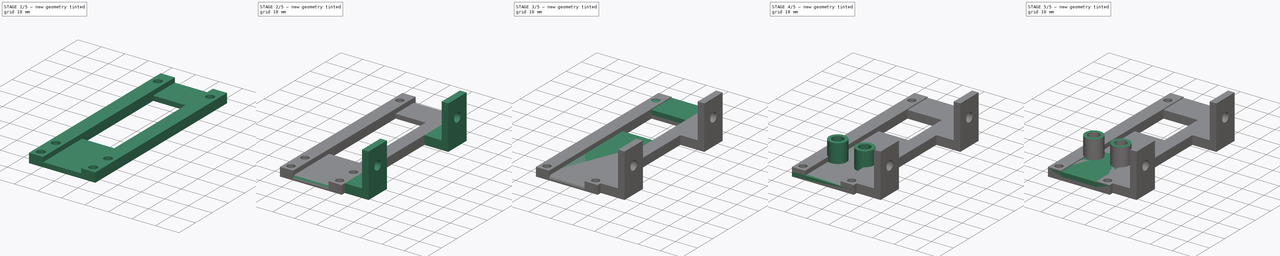
[diagram: build sequence overview — one tinted view per stage of 5, left to right]
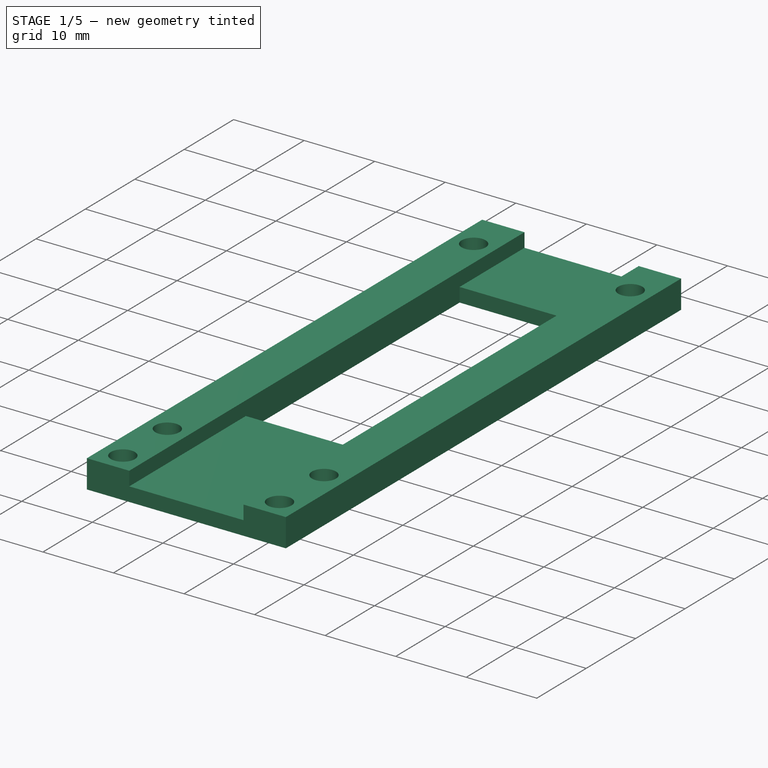
[diagram: stage 1 of 5 — iso view after this stage's code; geometry added in this stage tinted green]
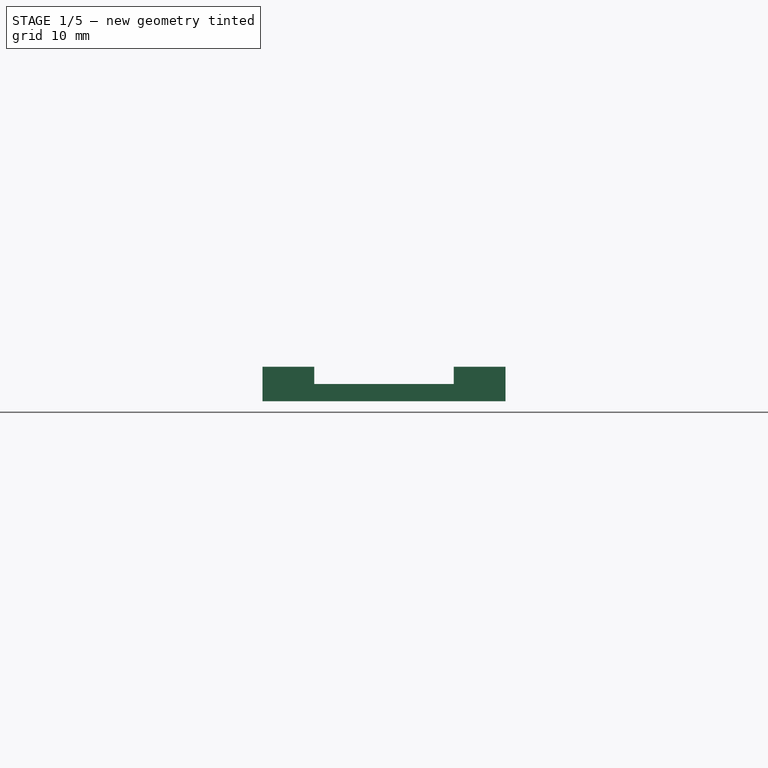
[diagram: stage 1 of 5 — front view after this stage's code; geometry added in this stage tinted green]
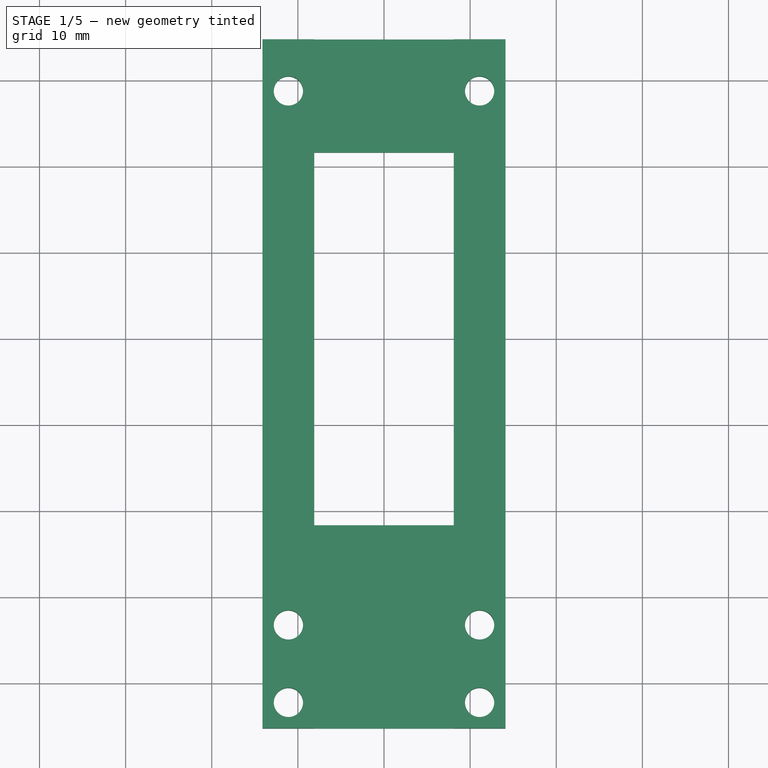
[diagram: stage 1 of 5 — top view after this stage's code; geometry added in this stage tinted green]
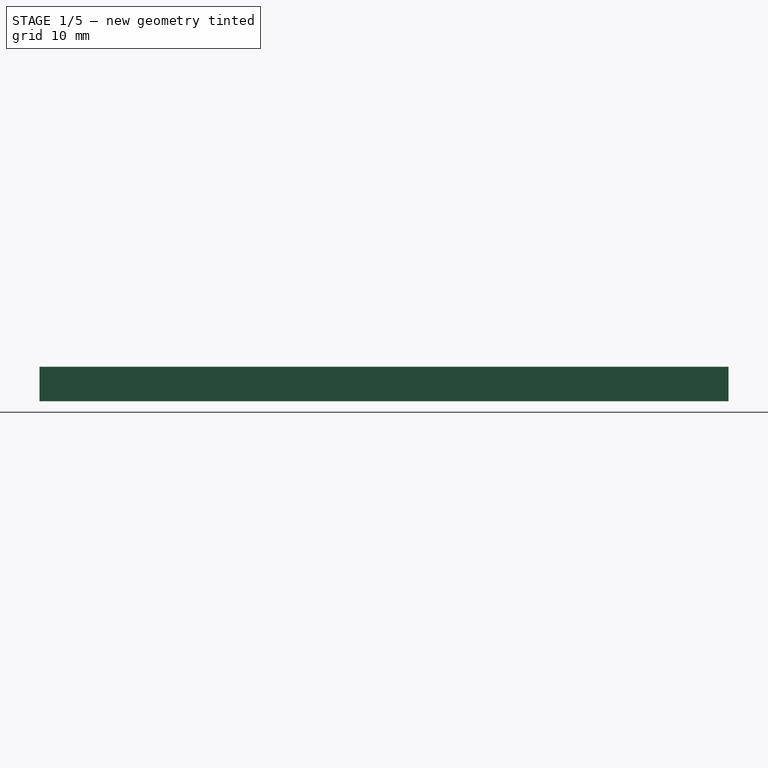
[diagram: stage 1 of 5 — right view after this stage's code; geometry added in this stage tinted green]
FCSTD DOCUMENT  (FreeCAD 0.21R33771 (Git))
Label: 16mm Film Holder
License: All rights reserved
LicenseURL: http://en.wikipedia.org/wiki/All_rights_reserved
objects: Sketcher::SketchObject×27, PartDesign::Pad×11, PartDesign::Pocket×11, PartDesign::Body×5, PartDesign::Fillet×2, Part::Feature×1
note: 81 computed .brp shape members not serialized (recipe doc carries the construction recipe); baked Part::Feature solids carry a one-line shape summary decoded from their .brp

FEATURE [Sketcher::SketchObject] Sketch  label="FilmStripOutline"
  FullyConstrained = false
  MapMode = 5
  Support = -> [XY_Plane]
  sketch-geometry (97):
    g0: LineSegment StartX=-8 StartY=30.2375 StartZ=0 EndX=8 EndY=30.2375 EndZ=0
    g1: LineSegment StartX=8 StartY=30.2375 StartZ=0 EndX=8 EndY=-30.2375 EndZ=0
    g2: LineSegment StartX=8 StartY=-30.2375 StartZ=0 EndX=-8 EndY=-30.2375 EndZ=0
    g3: LineSegment StartX=-8 StartY=-30.2375 StartZ=0 EndX=-8 EndY=30.2375 EndZ=0
    g4: LineSegment StartX=-5.13 StartY=3.745 StartZ=0 EndX=5.13 EndY=3.745 EndZ=0
    g5: LineSegment StartX=5.13 StartY=3.745 StartZ=0 EndX=5.13 EndY=-3.745 EndZ=0
    g6: LineSegment StartX=5.13 StartY=-3.745 StartZ=0 EndX=-5.13 EndY=-3.745 EndZ=0
    g7: LineSegment StartX=-5.13 StartY=-3.745 StartZ=0 EndX=-5.13 EndY=3.745 EndZ=0
    g8: LineSegment StartX=-5.13 StartY=3.8575 StartZ=0 EndX=5.13 EndY=3.8575 EndZ=0
    g9: LineSegment StartX=5.13 StartY=3.8575 StartZ=0 EndX=5.13 EndY=11.3475 EndZ=0
    g10: LineSegment StartX=5.13 StartY=11.3475 StartZ=0 EndX=-5.13 EndY=11.3475 EndZ=0
    g11: LineSegment StartX=-5.13 StartY=11.3475 StartZ=0 EndX=-5.13 EndY=3.8575 EndZ=0
    g12: LineSegment StartX=-5.13 StartY=12.0925 StartZ=0 EndX=5.13 EndY=12.0925 EndZ=0
    g13: LineSegment StartX=5.13 StartY=12.0925 StartZ=0 EndX=5.13 EndY=19.5825 EndZ=0
    g14: LineSegment StartX=5.13 StartY=19.5825 StartZ=0 EndX=-5.13 EndY=19.5825 EndZ=0
    g15: LineSegment StartX=-5.13 StartY=19.5825 StartZ=0 EndX=-5.13 EndY=12.0925 EndZ=0
    g16: LineSegment StartX=-5.13 StartY=-3.8575 StartZ=0 EndX=5.13 EndY=-3.8575 EndZ=0
    g17: LineSegment StartX=5.13 StartY=-3.8575 StartZ=0 EndX=5.13 EndY=-11.3475 EndZ=0
    g18: LineSegment StartX=5.13 StartY=-11.3475 StartZ=0 EndX=-5.13 EndY=-11.3475 EndZ=0
    g19: LineSegment StartX=-5.13 StartY=-11.3475 StartZ=0 EndX=-5.13 EndY=-3.8575 EndZ=0
    g20: LineSegment StartX=-5.13 StartY=-11.4575 StartZ=0 EndX=5.13 EndY=-11.4575 EndZ=0
    g21: LineSegment StartX=5.13 StartY=-11.4575 StartZ=0 EndX=5.13 EndY=-18.9475 EndZ=0
    g22: LineSegment StartX=5.13 StartY=-18.9475 StartZ=0 EndX=-5.13 EndY=-18.9475 EndZ=0
    g23: LineSegment StartX=-5.13 StartY=-18.9475 StartZ=0 EndX=-5.13 EndY=-11.4575 EndZ=0
    g24: LineSegment StartX=-7.1687 StartY=4.4375 StartZ=0 EndX=-5.1875 EndY=4.4375 EndZ=0
    g25: LineSegment StartX=-5.1875 StartY=4.4375 StartZ=0 EndX=-5.1875 EndY=3.1675 EndZ=0
    g26: LineSegment StartX=-5.1875 StartY=3.1675 StartZ=0 EndX=-7.1687 EndY=3.1675 EndZ=0
    g27: LineSegment StartX=-7.1687 StartY=3.1675 StartZ=0 EndX=-7.1687 EndY=4.4375 EndZ=0
    g28: LineSegment StartX=5.1875 StartY=4.4375 StartZ=0 EndX=7.1687 EndY=4.4375 EndZ=0
    g29: LineSegment StartX=7.1687 StartY=4.4375 StartZ=0 EndX=7.1687 EndY=3.1675 EndZ=0
    g30: LineSegment StartX=7.1687 StartY=3.1675 StartZ=0 EndX=5.1875 EndY=3.1675 EndZ=0
    g31: LineSegment StartX=5.1875 StartY=3.1675 StartZ=0 EndX=5.1875 EndY=4.4375 EndZ=0
    g32: GeomPoint X=6.1781 Y=3.8025 Z=0
    g33: GeomPoint X=-6.1781 Y=3.8025 Z=0
    g34: LineSegment StartX=-7.1687 StartY=-3.1675 StartZ=0 EndX=-5.1875 EndY=-3.1675 EndZ=0
    g35: LineSegment StartX=-5.1875 StartY=-3.1675 StartZ=0 EndX=-5.1875 EndY=-4.4375 EndZ=0
    g36: LineSegment StartX=-5.1875 StartY=-4.4375 StartZ=0 EndX=-7.1687 EndY=-4.4375 EndZ=0
    g37: LineSegment StartX=-7.1687 StartY=-4.4375 StartZ=0 EndX=-7.1687 EndY=-3.1675 EndZ=0
    g38: LineSegment StartX=5.1875 StartY=-3.1675 StartZ=0 EndX=7.1687 EndY=-3.1675 EndZ=0
    g39: LineSegment StartX=7.1687 StartY=-3.1675 StartZ=0 EndX=7.1687 EndY=-4.4375 EndZ=0
    g40: LineSegment StartX=7.1687 StartY=-4.4375 StartZ=0 EndX=5.1875 EndY=-4.4375 EndZ=0
    g41: LineSegment StartX=5.1875 StartY=-4.4375 StartZ=0 EndX=5.1875 EndY=-3.1675 EndZ=0
    g42: GeomPoint X=-6.1781 Y=-3.8025 Z=0
    g43: GeomPoint X=6.1781 Y=-3.8025 Z=0
    g44: LineSegment StartX=-7.1687 StartY=-10.7675 StartZ=0 EndX=-5.1875 EndY=-10.7675 EndZ=0
    g45: LineSegment StartX=-5.1875 StartY=-10.7675 StartZ=0 EndX=-5.1875 EndY=-12.0375 EndZ=0
    g46: LineSegment StartX=-5.1875 StartY=-12.0375 StartZ=0 EndX=-7.1687 EndY=-12.0375 EndZ=0
    g47: LineSegment StartX=-7.1687 StartY=-12.0375 StartZ=0 EndX=-7.1687 EndY=-10.7675 EndZ=0
    g48: LineSegment StartX=5.1875 StartY=-10.7675 StartZ=0 EndX=7.1687 EndY=-10.7675 EndZ=0
    g49: LineSegment StartX=7.1687 StartY=-10.7675 StartZ=0 EndX=7.1687 EndY=-12.0375 EndZ=0
    g50: LineSegment StartX=7.1687 StartY=-12.0375 StartZ=0 EndX=5.1875 EndY=-12.0375 EndZ=0
    g51: LineSegment StartX=5.1875 StartY=-12.0375 StartZ=0 EndX=5.1875 EndY=-10.7675 EndZ=0
    g52: LineSegment StartX=-7.1687 StartY=-18.3675 StartZ=0 EndX=-5.1875 EndY=-18.3675 EndZ=0
    g53: LineSegment StartX=-5.1875 StartY=-18.3675 StartZ=0 EndX=-5.1875 EndY=-19.6375 EndZ=0
    g54: LineSegment StartX=-5.1875 StartY=-19.6375 StartZ=0 EndX=-7.1687 EndY=-19.6375 EndZ=0
    g55: LineSegment StartX=-7.1687 StartY=-19.6375 StartZ=0 EndX=-7.1687 EndY=-18.3675 EndZ=0
    g56: LineSegment StartX=5.1875 StartY=-18.3675 StartZ=0 EndX=7.1687 EndY=-18.3675 EndZ=0
    g57: LineSegment StartX=7.1687 StartY=-18.3675 StartZ=0 EndX=7.1687 EndY=-19.6375 EndZ=0
    g58: LineSegment StartX=7.1687 StartY=-19.6375 StartZ=0 EndX=5.1875 EndY=-19.6375 EndZ=0
    g59: LineSegment StartX=5.1875 StartY=-19.6375 StartZ=0 EndX=5.1875 EndY=-18.3675 EndZ=0
    g60: GeomPoint X=6e-16 Y=-7.6025 Z=0
    g61: GeomPoint X=-1.31121 Y=-21.1583 Z=0
    g62: GeomPoint X=8e-16 Y=-15.2025 Z=0
    g63: LineSegment StartX=-7.1687 StartY=12.0375 StartZ=0 EndX=-5.1875 EndY=12.0375 EndZ=0
    g64: LineSegment StartX=-5.1875 StartY=12.0375 StartZ=0 EndX=-5.1875 EndY=10.7675 EndZ=0
    g65: LineSegment StartX=-5.1875 StartY=10.7675 StartZ=0 EndX=-7.1687 EndY=10.7675 EndZ=0
    g66: LineSegment StartX=-7.1687 StartY=10.7675 StartZ=0 EndX=-7.1687 EndY=12.0375 EndZ=0
    g67: LineSegment StartX=-7.1687 StartY=19.6375 StartZ=0 EndX=-5.1875 EndY=19.6375 EndZ=0
    g68: LineSegment StartX=-5.1875 StartY=19.6375 StartZ=0 EndX=-5.1875 EndY=18.3675 EndZ=0
    g69: LineSegment StartX=-5.1875 StartY=18.3675 StartZ=0 EndX=-7.1687 EndY=18.3675 EndZ=0
    g70: LineSegment StartX=-7.1687 StartY=18.3675 StartZ=0 EndX=-7.1687 EndY=19.6375 EndZ=0
    g71: LineSegment StartX=5.1875 StartY=19.6375 StartZ=0 EndX=7.1687 EndY=19.6375 EndZ=0
    g72: LineSegment StartX=7.1687 StartY=19.6375 StartZ=0 EndX=7.1687 EndY=18.3675 EndZ=0
    g73: LineSegment StartX=7.1687 StartY=18.3675 StartZ=0 EndX=5.1875 EndY=18.3675 EndZ=0
    g74: LineSegment StartX=5.1875 StartY=18.3675 StartZ=0 EndX=5.1875 EndY=19.6375 EndZ=0
    g75: LineSegment StartX=5.1875 StartY=12.0375 StartZ=0 EndX=7.1687 EndY=12.0375 EndZ=0
    g76: LineSegment StartX=7.1687 StartY=12.0375 StartZ=0 EndX=7.1687 EndY=10.7675 EndZ=0
    g77: LineSegment StartX=7.1687 StartY=10.7675 StartZ=0 EndX=5.1875 EndY=10.7675 EndZ=0
    g78: LineSegment StartX=5.1875 StartY=10.7675 StartZ=0 EndX=5.1875 EndY=12.0375 EndZ=0
    g79: LineSegment StartX=5.1875 StartY=27.2375 StartZ=0 EndX=7.1687 EndY=27.2375 EndZ=0
    g80: LineSegment StartX=7.1687 StartY=27.2375 StartZ=0 EndX=7.1687 EndY=25.9675 EndZ=0
    g81: LineSegment StartX=7.1687 StartY=25.9675 StartZ=0 EndX=5.1875 EndY=25.9675 EndZ=0
    g82: LineSegment StartX=5.1875 StartY=25.9675 StartZ=0 EndX=5.1875 EndY=27.2375 EndZ=0
    g83: LineSegment StartX=-7.1687 StartY=27.2375 StartZ=0 EndX=-5.1875 EndY=27.2375 EndZ=0
    g84: LineSegment StartX=-5.1875 StartY=27.2375 StartZ=0 EndX=-5.1875 EndY=25.9675 EndZ=0
    g85: LineSegment StartX=-5.1875 StartY=25.9675 StartZ=0 EndX=-7.1687 EndY=25.9675 EndZ=0
    g86: LineSegment StartX=-7.1687 StartY=25.9675 StartZ=0 EndX=-7.1687 EndY=27.2375 EndZ=0
    g87: LineSegment StartX=5.1875 StartY=-25.9675 StartZ=0 EndX=7.1687 EndY=-25.9675 EndZ=0
    g88: LineSegment StartX=7.1687 StartY=-25.9675 StartZ=0 EndX=7.1687 EndY=-27.2375 EndZ=0
    g89: LineSegment StartX=7.1687 StartY=-27.2375 StartZ=0 EndX=5.1875 EndY=-27.2375 EndZ=0
    g90: LineSegment StartX=5.1875 StartY=-27.2375 StartZ=0 EndX=5.1875 EndY=-25.9675 EndZ=0
    g91: LineSegment StartX=-7.1687 StartY=-25.9675 StartZ=0 EndX=-5.1875 EndY=-25.9675 EndZ=0
    g92: LineSegment StartX=-5.1875 StartY=-25.9675 StartZ=0 EndX=-5.1875 EndY=-27.2375 EndZ=0
    g93: LineSegment StartX=-5.1875 StartY=-27.2375 StartZ=0 EndX=-7.1687 EndY=-27.2375 EndZ=0
    g94: LineSegment StartX=-7.1687 StartY=-27.2375 StartZ=0 EndX=-7.1687 EndY=-25.9675 EndZ=0
    g95: GeomPoint X=3e-16 Y=7.6025 Z=0
    g96: GeomPoint X=0 Y=15.8375 Z=0
  constraints (265):
    c: Coincident(g1,g2)
    c: Coincident(g2,g3)
    c: Coincident(g3,g0)
    c: Horizontal(g0)
    c: Horizontal(g2)
    c: Vertical(g1)
    c: Vertical(g3)
    c: DistanceX(g0,g0) = 16
    c: Coincident(g4,g5)
    c: Coincident(g5,g6)
    c: Coincident(g6,g7)
    c: Coincident(g7,g4)
    c: Horizontal(g4)
    c: Horizontal(g6)
    c: Vertical(g5)
    c: Vertical(g7)
    c: DistanceY(g5,g5) = 7.49
    c: DistanceX(g4,g4) = 10.26
    c: Symmetric(g4,g6,g-1)
    c: Symmetric(g1,g0,g-1)
    c: Coincident(g8,g9)
    c: Coincident(g9,g10)
    c: Coincident(g10,g11)
    c: Coincident(g11,g8)
    c: Horizontal(g8)
    c: Horizontal(g10)
    c: Vertical(g9)
    c: Vertical(g11)
    c: Coincident(g12,g13)
    c: Coincident(g13,g14)
    c: Coincident(g14,g15)
    c: Coincident(g15,g12)
    c: Horizontal(g12)
    c: Horizontal(g14)
    c: Vertical(g13)
    c: Vertical(g15)
    c: Coincident(g16,g17)
    c: Coincident(g17,g18)
    c: Coincident(g18,g19)
    c: Coincident(g19,g16)
    c: Horizontal(g16)
    c: Horizontal(g18)
    c: Vertical(g17)
    c: Vertical(g19)
    c: Coincident(g20,g21)
    c: Coincident(g21,g22)
    c: Coincident(g22,g23)
    c: Coincident(g23,g20)
    c: Horizontal(g20)
    c: Horizontal(g22)
    c: Vertical(g21)
    c: Vertical(g23)
    c: Vertical(g13,g9)
    c: Vertical(g9,g16)
    c: Vertical(g16,g4)
    c: Vertical(g4,g20)
    c: Vertical(g20,g16)
    c: Vertical(g16,g4)
    c: Vertical(g4,g10)
    c: Vertical(g10,g14)
    c: Coincident(g24,g25)
    c: Coincident(g25,g26)
    c: Coincident(g26,g27)
    c: Coincident(g27,g24)
    c: Horizontal(g24)
    c: Horizontal(g26)
    c: Vertical(g25)
    c: Vertical(g27)
    c: Coincident(g28,g29)
    c: Coincident(g29,g30)
    c: Coincident(g30,g31)
    c: Coincident(g31,g28)
    c: Horizontal(g28)
    c: Horizontal(g30)
    c: Vertical(g29)
    c: Vertical(g31)
    c: DistanceY(g25,g25) = 1.27
    c: DistanceX(g24,g24) = 1.9812
    c: Equal(g24,g28)
    c: Equal(g25,g31)
    c: Horizontal(g24,g28)
    c: Symmetric(g24,g26,g33)
    c: Symmetric(g28,g30,g32)
    c: Coincident(g34,g35)
    c: Coincident(g35,g36)
    c: Coincident(g36,g37)
    c: Coincident(g37,g34)
    c: Horizontal(g34)
    c: Horizontal(g36)
    c: Vertical(g35)
    c: Vertical(g37)
    c: Coincident(g38,g39)
    c: Coincident(g39,g40)
    c: Coincident(g40,g41)
    c: Coincident(g41,g38)
    c: Horizontal(g38)
    c: Horizontal(g40)
    c: Vertical(g39)
    c: Vertical(g41)
    c: Equal(g38,g34)
    c: Equal(g34,g26)
    c: Vertical(g25,g34)
    c: Vertical(g38,g30)
    c: Equal(g25,g37)
    c: Equal(g37,g41)
    c: Symmetric(g38,g40,g43)
    c: Symmetric(g34,g36,g42)
    c: DistanceY(g42,g33) = 7.605
    c: Horizontal(g42,g43)
    c: Symmetric(g32,g42,g-1)
    c: DistanceX(g24,g4) = 0.0575
    c: Equal(g11,g15)
    c: Coincident(g44,g45)
    c: Coincident(g45,g46)
    c: Coincident(g46,g47)
    c: Coincident(g47,g44)
    c: Horizontal(g44)
    c: Horizontal(g46)
    c: Vertical(g45)
    c: Vertical(g47)
    c: Coincident(g48,g49)
    c: Coincident(g49,g50)
    c: Coincident(g50,g51)
    c: Coincident(g51,g48)
    c: Horizontal(g48)
    c: Horizontal(g50)
    c: Vertical(g49)
    c: Vertical(g51)
    c: Coincident(g52,g53)
    c: Coincident(g53,g54)
    c: Coincident(g54,g55)
    c: Coincident(g55,g52)
    c: Horizontal(g52)
    c: Horizontal(g54)
    c: Vertical(g53)
    c: Vertical(g55)
    c: Coincident(g56,g57)
    c: Coincident(g57,g58)
    c: Coincident(g58,g59)
    c: Coincident(g59,g56)
    c: Horizontal(g56)
    c: Horizontal(g58)
    c: Vertical(g57)
    c: Vertical(g59)
    c: Vertical(g36,g44)
    c: Vertical(g46,g52)
    c: Vertical(g39,g48)
    c: Vertical(g49,g56)
    c: Equal(g44,g54)
    c: Equal(g58,g50)
    c: Equal(g47,g37)
    c: Equal(g37,g51)
    c: Equal(g51,g59)
    c: Equal(g59,g53)
    c: DistanceY(g48,g39) = 6.33
    c: DistanceY(g56,g49) = 6.33
    c: Horizontal(g44,g48)
    c: Horizontal(g56,g52)
    c: Symmetric(g40,g44,g60)
    c: Symmetric(g16,g17,g60)
    c: Equal(g19,g7)
    c: Symmetric(g45,g56,g62)
    c: Symmetric(g20,g21,g62)
    c: Equal(g23,g19)
    c: Coincident(g63,g64)
    c: Coincident(g64,g65)
    c: Coincident(g65,g66)
    c: Coincident(g66,g63)
    c: Horizontal(g63)
    c: Horizontal(g65)
    c: Vertical(g64)
    c: Vertical(g66)
    c: Coincident(g67,g68)
    c: Coincident(g68,g69)
    c: Coincident(g69,g70)
    c: Coincident(g70,g67)
    c: Horizontal(g67)
    c: Horizontal(g69)
    c: Vertical(g68)
    c: Vertical(g70)
    c: Coincident(g71,g72)
    c: Coincident(g72,g73)
    c: Coincident(g73,g74)
    c: Coincident(g74,g71)
    c: Horizontal(g71)
    c: Horizontal(g73)
    c: Vertical(g72)
    c: Vertical(g74)
    c: Coincident(g75,g76)
    c: Coincident(g76,g77)
    c: Coincident(g77,g78)
    c: Coincident(g78,g75)
    c: Horizontal(g75)
    c: Horizontal(g77)
    c: Vertical(g76)
    c: Vertical(g78)
    c: Coincident(g79,g80)
    c: Coincident(g80,g81)
    c: Coincident(g81,g82)
    c: Coincident(g82,g79)
    c: Horizontal(g79)
    c: Horizontal(g81)
    c: Vertical(g80)
    c: Vertical(g82)
    c: Coincident(g83,g84)
    c: Coincident(g84,g85)
    c: Coincident(g85,g86)
    c: Coincident(g86,g83)
    c: Horizontal(g83)
    c: Horizontal(g85)
    c: Vertical(g84)
    c: Vertical(g86)
    c: Coincident(g87,g88)
    c: Coincident(g88,g89)
    c: Coincident(g89,g90)
    c: Coincident(g90,g87)
    c: Horizontal(g87)
    c: Horizontal(g89)
    c: Vertical(g88)
    c: Vertical(g90)
    c: Coincident(g91,g92)
    c: Coincident(g92,g93)
    c: Coincident(g93,g94)
    c: Coincident(g94,g91)
    c: Horizontal(g91)
    c: Horizontal(g93)
    c: Vertical(g92)
    c: Vertical(g94)
    c: Equal(g94,g66)
    c: Equal(g66,g70)
    c: Equal(g70,g86)
    c: Equal(g86,g82)
    c: Equal(g82,g74)
    c: Equal(g74,g78)
    c: Equal(g78,g90)
    c: Equal(g90,g27)
    c: Equal(g83,g79)
    c: Equal(g79,g71)
    c: Equal(g71,g75)
    c: Equal(g75,g63)
    c: Equal(g63,g67)
    c: Equal(g67,g91)
    c: Equal(g91,g87)
    c: Equal(g87,g52)
    c: Horizontal(g91,g87)
    c: Horizontal(g75,g63)
    c: Horizontal(g67,g71)
    c: Horizontal(g81,g84)
    c: Vertical(g84,g67)
    c: Vertical(g67,g63)
    c: Vertical(g81,g71)
    c: Vertical(g71,g75)
    c: Vertical(g87,g58)
    c: Vertical(g53,g91)
    c: DistanceY(g87,g57) = 6.33
    c: DistanceY(g28,g76) = 6.33
    c: DistanceY(g75,g72) = 6.33
    c: DistanceY(g71,g80) = 6.33
    c: Symmetric(g64,g28,g95)
    c: Symmetric(g67,g75,g96)
    c: Symmetric(g9,g8,g95)
    c: Symmetric(g13,g12,g96)
    c: Equal(g11,g7)
    c: DistanceY(g1,g88) = 3
    c: Coincident(g1,g0)
FEATURE [Sketcher::SketchObject] Sketch001
  ExternalGeometry = -> [Sketch]
  FullyConstrained = true
  MapMode = 5
  Support = -> [XY_Plane]
  sketch-geometry (4):
    g0: LineSegment StartX=-14.1 StartY=34.7625 StartZ=0 EndX=14.1 EndY=34.7625 EndZ=0
    g1: LineSegment StartX=14.1 StartY=34.7625 StartZ=0 EndX=14.1 EndY=-45.2375 EndZ=0
    g2: LineSegment StartX=14.1 StartY=-45.2375 StartZ=0 EndX=-14.1 EndY=-45.2375 EndZ=0
    g3: LineSegment StartX=-14.1 StartY=-45.2375 StartZ=0 EndX=-14.1 EndY=34.7625 EndZ=0
  constraints (12):
    c: Coincident(g0,g1)
    c: Coincident(g1,g2)
    c: Coincident(g2,g3)
    c: Coincident(g3,g0)
    c: Horizontal(g0)
    c: Horizontal(g2)
    c: Vertical(g1)
    c: Vertical(g3)
    c: DistanceX(g0,g-4) = 6.1
    c: DistanceX(g-3,g0) = 6.1
    c: DistanceY(g1,g-7) = 18
    c: DistanceY(g1,g1) = 80
FEATURE [PartDesign::Pad] Pad  label="MainBody"
  Direction = (0,0,1)
  Length = 4
  Length2 = 10
  Profile = -> Sketch001
  ReferenceAxis = -> Sketch001 [N_Axis]
  Type = 0
FEATURE [Sketcher::SketchObject] Sketch002
  ExternalGeometry = -> [Pad]
  FullyConstrained = true
  MapMode = 5
  Placement = pos=(0,0,4) rot=(0,0,1;0rad)
  Support = -> [Pad]
  sketch-geometry (5):
    g0: LineSegment StartX=-8.1 StartY=34.7625 StartZ=0 EndX=8.1 EndY=34.7625 EndZ=0
    g1: LineSegment StartX=8.1 StartY=34.7625 StartZ=0 EndX=8.1 EndY=-45.2375 EndZ=0
    g2: LineSegment StartX=8.1 StartY=-45.2375 StartZ=0 EndX=-8.1 EndY=-45.2375 EndZ=0
    g3: LineSegment StartX=-8.1 StartY=-45.2375 StartZ=0 EndX=-8.1 EndY=34.7625 EndZ=0
    g4: GeomPoint X=0 Y=-5.2375 Z=0
  constraints (13):
    c: Coincident(g0,g1)
    c: Coincident(g1,g2)
    c: Coincident(g2,g3)
    c: Coincident(g3,g0)
    c: Horizontal(g0)
    c: Horizontal(g2)
    c: Vertical(g1)
    c: Vertical(g3)
    c: DistanceX(g2,g2) = 16.2
    c: PointOnObject(g4,g-2)
    c: Symmetric(g0,g2,g4)
    c: PointOnObject(g0,g-3)
    c: PointOnObject(g2,g-4)
FEATURE [PartDesign::Pocket] Pocket  label="FilmCutOut"
  BaseFeature = -> Pad
  Direction = (0,0,-1)
  Length = 2
  Length2 = 5
  Profile = -> Sketch002
  ReferenceAxis = -> Sketch002 [N_Axis]
  Type = 0
FEATURE [Sketcher::SketchObject] Sketch003
  ExternalGeometry = -> [Sketch,Pocket]
  FullyConstrained = true
  MapMode = 5
  Placement = pos=(0,0,2) rot=(0,0,1;0rad)
  Support = -> [Pocket]
  sketch-geometry (4):
    g0: LineSegment StartX=-8.1 StartY=21.6375 StartZ=0 EndX=8.1 EndY=21.6375 EndZ=0
    g1: LineSegment StartX=8.1 StartY=21.6375 StartZ=0 EndX=8.1 EndY=-21.6375 EndZ=0
    g2: LineSegment StartX=8.1 StartY=-21.6375 StartZ=0 EndX=-8.1 EndY=-21.6375 EndZ=0
    g3: LineSegment StartX=-8.1 StartY=-21.6375 StartZ=0 EndX=-8.1 EndY=21.6375 EndZ=0
  constraints (12):
    c: Coincident(g0,g1)
    c: Coincident(g1,g2)
    c: Coincident(g2,g3)
    c: Coincident(g3,g0)
    c: Horizontal(g0)
    c: Horizontal(g2)
    c: Vertical(g1)
    c: Vertical(g3)
    c: PointOnObject(g0,g-6)
    c: PointOnObject(g1,g-5)
    c: DistanceY(g1,g-4) = 2
    c: DistanceY(g-3,g0) = 2
FEATURE [PartDesign::Pocket] Pocket001  label="FilmWindow"
  BaseFeature = -> Pocket
  Direction = (0,0,-1)
  Length = 5
  Length2 = 5
  Profile = -> Sketch003
  ReferenceAxis = -> Sketch003 [N_Axis]
  Type = 2
FEATURE [PartDesign::Body] Body001  label="BottomCover"
  Group = -> [Sketch004,Sketch005,Pad001,Sketch006,Pad002,Sketch007,Pocket002,Sketch008,Pad003,Sketch009,Pocket003]
  Origin = -> Origin001
  Placement = pos=(0,0,2.4) rot=(0,0,1;0rad)
  Tip = -> Pocket003
FEATURE [Sketcher::SketchObject] Sketch010
  ExternalGeometry = -> [Pocket001]
  FullyConstrained = true
  MapMode = 5
  Placement = pos=(0,0,4) rot=(0,0,1;0rad)
  Support = -> [Pocket001]
  sketch-geometry (4):
    g0: Circle CenterX=-11.1 CenterY=-42.2375 CenterZ=0 NormalX=0 NormalY=0 NormalZ=1 AngleXU=0 Radius=1.7
    g1: Circle CenterX=-11.1 CenterY=-33.2375 CenterZ=0 NormalX=0 NormalY=0 NormalZ=1 AngleXU=0 Radius=1.7
    g2: Circle CenterX=11.1 CenterY=-33.2375 CenterZ=0 NormalX=0 NormalY=0 NormalZ=1 AngleXU=0 Radius=1.7
    g3: Circle CenterX=11.1 CenterY=-42.2375 CenterZ=0 NormalX=0 NormalY=0 NormalZ=1 AngleXU=0 Radius=1.7
  constraints (12):
    c: Horizontal(g1,g2)
    c: Horizontal(g3,g0)
    c: Vertical(g0,g1)
    c: Vertical(g2,g3)
    c: DistanceX(g-4,g0) = 3
    c: DistanceX(g3,g-3) = 3
    c: DistanceY(g3,g2) = 9
    c: Equal(g2,g3)
    c: Equal(g3,g0)
    c: Equal(g0,g1)
    c: Radius(g2) = 1.7
    c: DistanceY(g-4,g0) = 3
FEATURE [PartDesign::Pocket] Pocket004  label="LowerScrewHoles"
  BaseFeature = -> Pocket001
  Direction = (0,0,-1)
  Length = 5
  Length2 = 5
  Profile = -> Sketch010
  ReferenceAxis = -> Sketch010 [N_Axis]
  Type = 1
FEATURE [PartDesign::Body] Body003  label="TopCover"
  Group = -> [Sketch017,Sketch018,Pad006,Sketch019,Pad007,Sketch020,Pocket007]
  Origin = -> Origin003
  Placement = pos=(0,0,2.4) rot=(0,0,1;0rad)
  Tip = -> Pocket007
FEATURE [Sketcher::SketchObject] Sketch021
  ExternalGeometry = -> [Pocket004]
  FullyConstrained = true
  MapMode = 5
  Placement = pos=(0,0,4) rot=(0,0,1;0rad)
  Support = -> [Pocket004]
  sketch-geometry (2):
    g0: Circle CenterX=-11.1 CenterY=28.7625 CenterZ=0 NormalX=0 NormalY=0 NormalZ=1 AngleXU=0 Radius=1.7
    g1: Circle CenterX=11.1 CenterY=28.7625 CenterZ=0 NormalX=0 NormalY=0 NormalZ=1 AngleXU=0 Radius=1.7
  constraints (6):
    c: DistanceX(g1,g-3) = 3
    c: DistanceX(g-3,g0) = 3
    c: Equal(g1,g0)
    c: Radius(g1) = 1.7
    c: DistanceY(g1,g-3) = 6
    c: Horizontal(g0,g1)
FEATURE [PartDesign::Pocket] Pocket008  label="UpperScrewHoles"
  BaseFeature = -> Pocket004
  Direction = (0,0,-1)
  Length = 5
  Length2 = 5
  Profile = -> Sketch021
  ReferenceAxis = -> Sketch021 [N_Axis]
  Type = 1
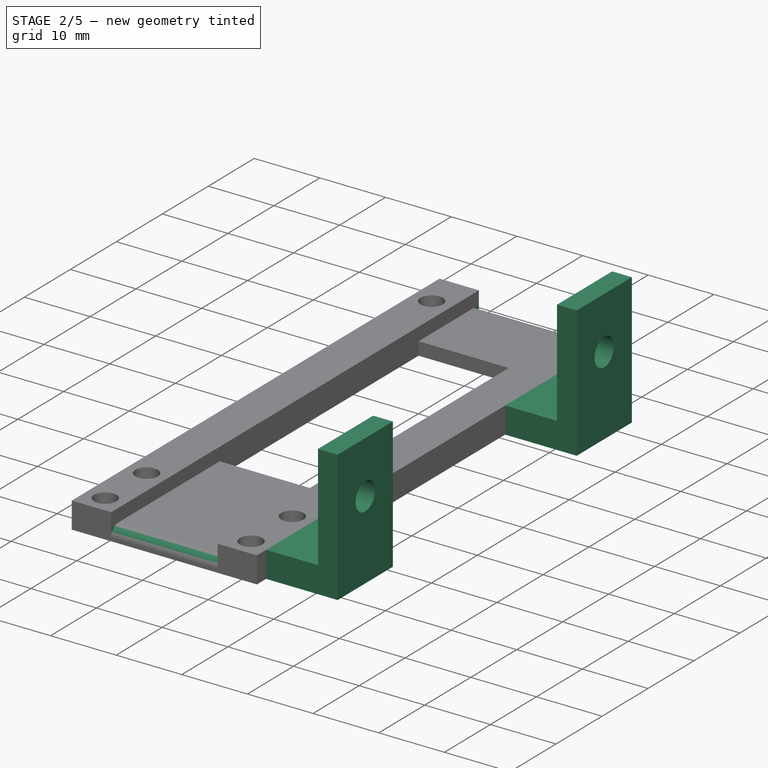
[diagram: stage 2 of 5 — iso view after this stage's code; geometry added in this stage tinted green]
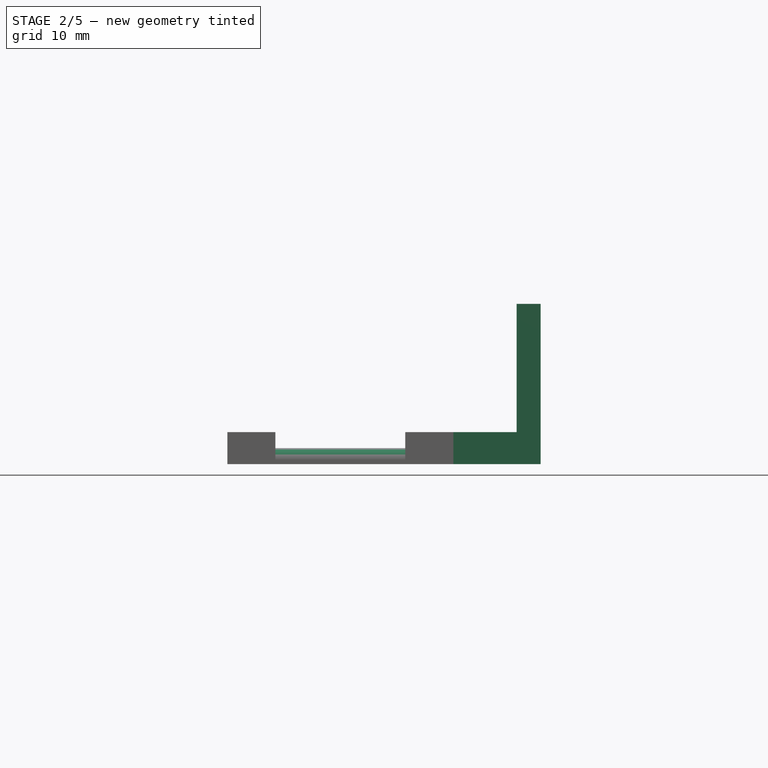
[diagram: stage 2 of 5 — front view after this stage's code; geometry added in this stage tinted green]
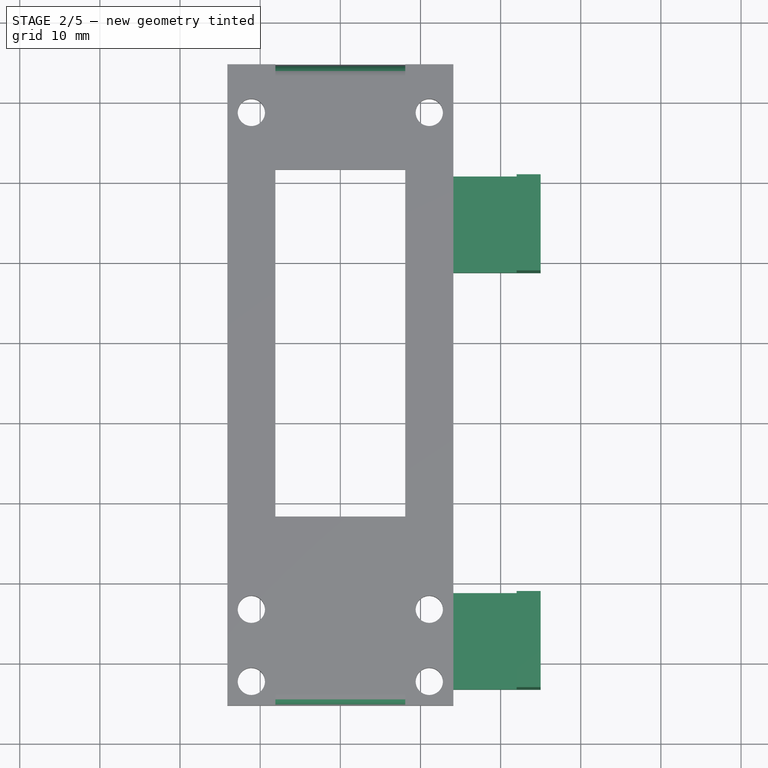
[diagram: stage 2 of 5 — top view after this stage's code; geometry added in this stage tinted green]
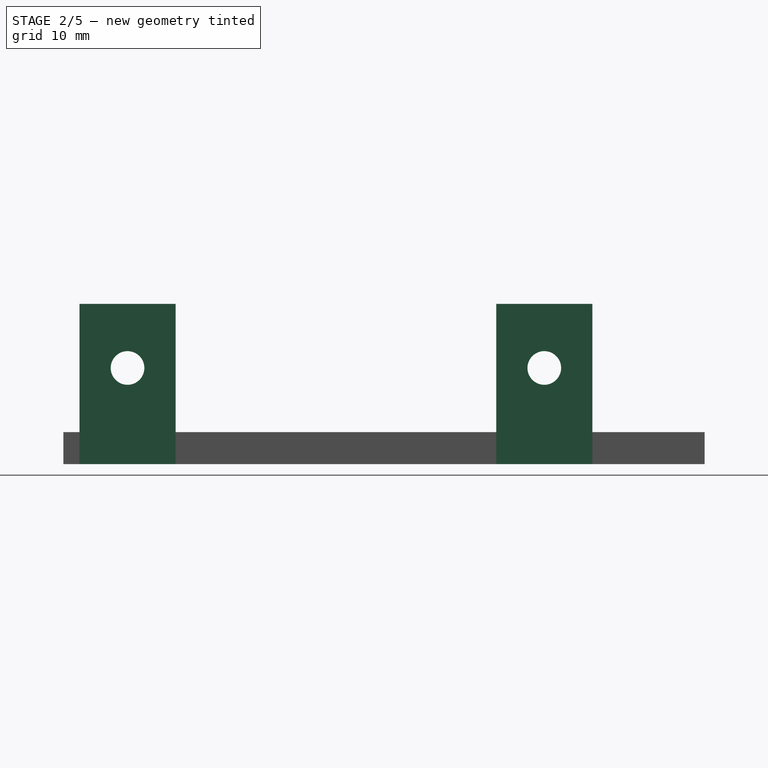
[diagram: stage 2 of 5 — right view after this stage's code; geometry added in this stage tinted green]
FEATURE [PartDesign::Body] Body004  label="GuideTest"
  Group = -> [Sketch022,Sketch023,Pad008,Sketch024,Pocket009]
  Origin = -> Origin004
  Tip = -> Pocket009
FEATURE [PartDesign::Fillet] Fillet  label="FilletFlimIn"
  Base = -> Pocket008 [Edge5]
  BaseFeature = -> Pocket008
  Radius = 1.5
  SupportTransform = false
  UseAllEdges = false
FEATURE [PartDesign::Fillet] Fillet001  label="FilletFilmOut"
  Base = -> Fillet [Edge53]
  BaseFeature = -> Fillet
  Radius = 1.5
  SupportTransform = false
  UseAllEdges = false
FEATURE [Sketcher::SketchObject] Sketch025
  ExternalGeometry = -> [Fillet001]
  FullyConstrained = true
  MapMode = 5
  Placement = pos=(14.1,0,0) rot=(0.57735,0.57735,0.57735;2.0944rad)
  Support = -> [Fillet001]
  sketch-geometry (8):
    g0: LineSegment StartX=-43.2375 StartY=0 StartZ=0 EndX=-31.2375 EndY=0 EndZ=0
    g1: LineSegment StartX=-31.2375 StartY=0 StartZ=0 EndX=-31.2375 EndY=4 EndZ=0
    g2: LineSegment StartX=-31.2375 StartY=4 StartZ=0 EndX=-43.2375 EndY=4 EndZ=0
    g3: LineSegment StartX=-43.2375 StartY=4 StartZ=0 EndX=-43.2375 EndY=0 EndZ=0
    g4: LineSegment StartX=8.7625 StartY=0 StartZ=0 EndX=20.7625 EndY=0 EndZ=0
    g5: LineSegment StartX=20.7625 StartY=0 StartZ=0 EndX=20.7625 EndY=4 EndZ=0
    g6: LineSegment StartX=20.7625 StartY=4 StartZ=0 EndX=8.7625 EndY=4 EndZ=0
    g7: LineSegment StartX=8.7625 StartY=4 StartZ=0 EndX=8.7625 EndY=0 EndZ=0
  constraints (24):
    c: Coincident(g0,g1)
    c: Coincident(g1,g2)
    c: Coincident(g2,g3)
    c: Coincident(g3,g0)
    c: Horizontal(g0)
    c: Horizontal(g2)
    c: Vertical(g1)
    c: Vertical(g3)
    c: PointOnObject(g0,g-4)
    c: PointOnObject(g1,g-3)
    c: Coincident(g4,g5)
    c: Coincident(g5,g6)
    c: Coincident(g6,g7)
    c: Coincident(g7,g4)
    c: Horizontal(g4)
    c: Horizontal(g6)
    c: Vertical(g5)
    c: Vertical(g7)
    c: PointOnObject(g4,g-4)
    c: PointOnObject(g5,g-3)
    c: Equal(g2,g6)
    c: DistanceX(g0,g0) = 12
    c: DistanceX(g-3,g2) = 2
    c: DistanceX(g5,g-3) = 14
FEATURE [PartDesign::Pad] Pad009  label="Legs"
  BaseFeature = -> Fillet001
  Direction = (1,0,0)
  Length = 10.9
  Length2 = 10
  Profile = -> Sketch025
  ReferenceAxis = -> Sketch025 [N_Axis]
  Type = 0
FEATURE [Sketcher::SketchObject] Sketch026
  ExternalGeometry = -> [Pad009]
  FullyConstrained = true
  MapMode = 5
  Placement = pos=(0,0,4) rot=(0,0,1;0rad)
  Support = -> [Pad009]
  sketch-geometry (8):
    g0: LineSegment StartX=25 StartY=20.7625 StartZ=0 EndX=22 EndY=20.7625 EndZ=0
    g1: LineSegment StartX=22 StartY=20.7625 StartZ=0 EndX=22 EndY=8.7625 EndZ=0
    g2: LineSegment StartX=22 StartY=8.7625 StartZ=0 EndX=25 EndY=8.7625 EndZ=0
    g3: LineSegment StartX=25 StartY=8.7625 StartZ=0 EndX=25 EndY=20.7625 EndZ=0
    g4: LineSegment StartX=25 StartY=-31.2375 StartZ=0 EndX=22 EndY=-31.2375 EndZ=0
    g5: LineSegment StartX=22 StartY=-31.2375 StartZ=0 EndX=22 EndY=-43.2375 EndZ=0
    g6: LineSegment StartX=22 StartY=-43.2375 StartZ=0 EndX=25 EndY=-43.2375 EndZ=0
    g7: LineSegment StartX=25 StartY=-43.2375 StartZ=0 EndX=25 EndY=-31.2375 EndZ=0
  constraints (22):
    c: Coincident(g0,g1)
    c: Coincident(g1,g2)
    c: Coincident(g2,g3)
    c: Coincident(g3,g0)
    c: Horizontal(g0)
    c: Horizontal(g2)
    c: Vertical(g1)
    c: Vertical(g3)
    c: Coincident(g0,g-3)
    c: PointOnObject(g1,g-5)
    c: Coincident(g4,g5)
    c: Coincident(g5,g6)
    c: Coincident(g6,g7)
    c: Coincident(g7,g4)
    c: Horizontal(g4)
    c: Horizontal(g6)
    c: Vertical(g5)
    c: Vertical(g7)
    c: Coincident(g4,g-4)
    c: PointOnObject(g5,g-6)
    c: Equal(g4,g2)
    c: DistanceX(g2,g2) = 3
FEATURE [PartDesign::Pad] Pad010  label="Feet"
  BaseFeature = -> Pad009
  Direction = (0,0,1)
  Length = 16
  Length2 = 10
  Profile = -> Sketch026
  ReferenceAxis = -> Sketch026 [N_Axis]
  Type = 0
FEATURE [Sketcher::SketchObject] Sketch027
  ExternalGeometry = -> [Pad010]
  FullyConstrained = true
  MapMode = 5
  Placement = pos=(22,0,0) rot=(0.57735,-0.57735,-0.57735;2.0944rad)
  Support = -> [Pad010]
  sketch-geometry (2):
    g0: Circle CenterX=-14.7625 CenterY=12 CenterZ=0 NormalX=0 NormalY=0 NormalZ=1 AngleXU=0 Radius=2.1
    g1: Circle CenterX=37.2375 CenterY=12 CenterZ=0 NormalX=0 NormalY=0 NormalZ=1 AngleXU=0 Radius=2.1
  constraints (4):
    c: Equal(g0,g1)
    c: Radius(g1) = 2.1
    c: Symmetric(g-5,g-4,g0)
    c: Symmetric(g-3,g-6,g1)
FEATURE [PartDesign::Pocket] Pocket010  label="ScrewHoles"
  BaseFeature = -> Pad010
  Direction = (1,0,0)
  Length = 5
  Length2 = 5
  Profile = -> Sketch027
  ReferenceAxis = -> Sketch027 [N_Axis]
  Type = 1
FEATURE [PartDesign::Body] Body  label="MainHolder"
  Group = -> [Sketch,Sketch001,Pad,Sketch002,Pocket,Sketch003,Pocket001,Sketch010,Pocket004,Sketch021,Pocket008,Fillet,Fillet001,Sketch025,Pad009,Sketch026,Pad010,Sketch027,Pocket010]
  Origin = -> Origin
  Tip = -> Pocket010
FEATURE [Part::Feature] Body005  label="MainHolder001"
  shape: bbox 39.1 x 80 x 20 mm, 47 faces (baked)
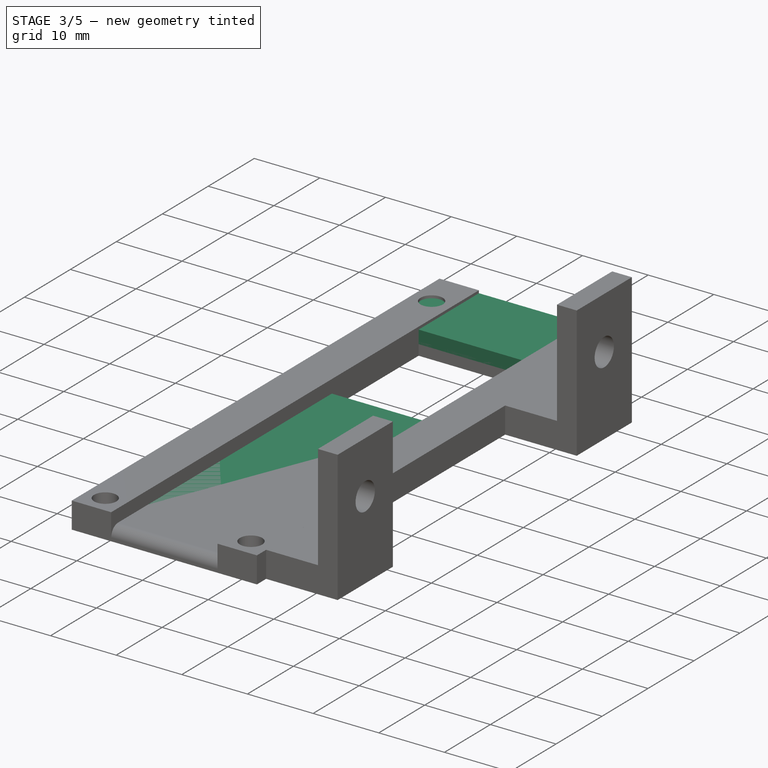
[diagram: stage 3 of 5 — iso view after this stage's code; geometry added in this stage tinted green]
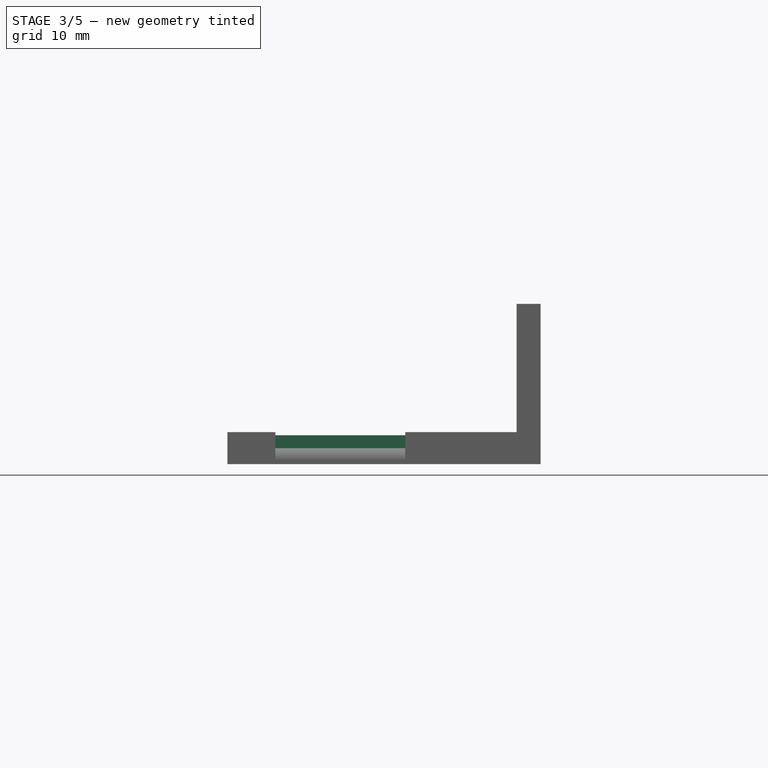
[diagram: stage 3 of 5 — front view after this stage's code; geometry added in this stage tinted green]
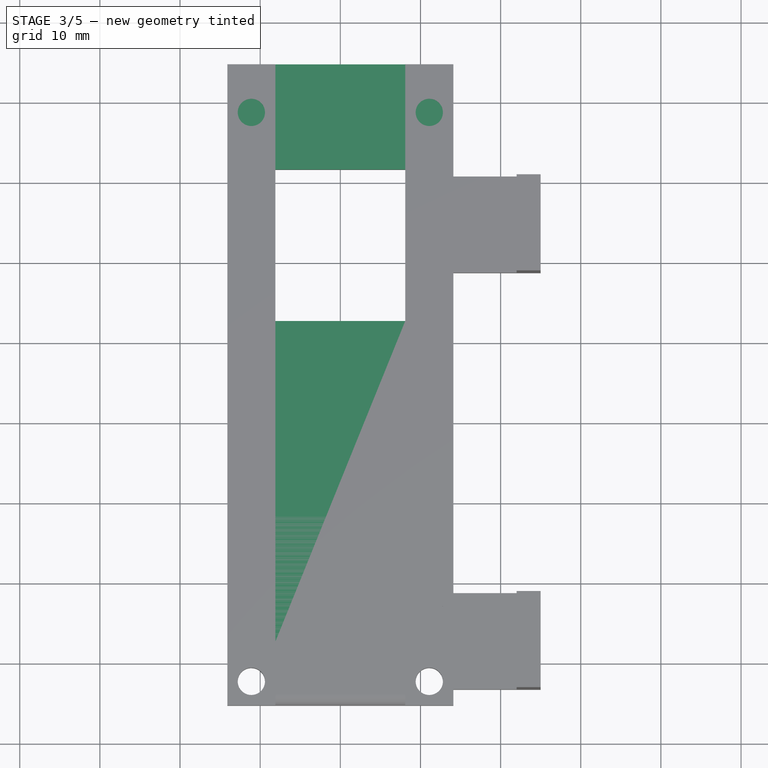
[diagram: stage 3 of 5 — top view after this stage's code; geometry added in this stage tinted green]
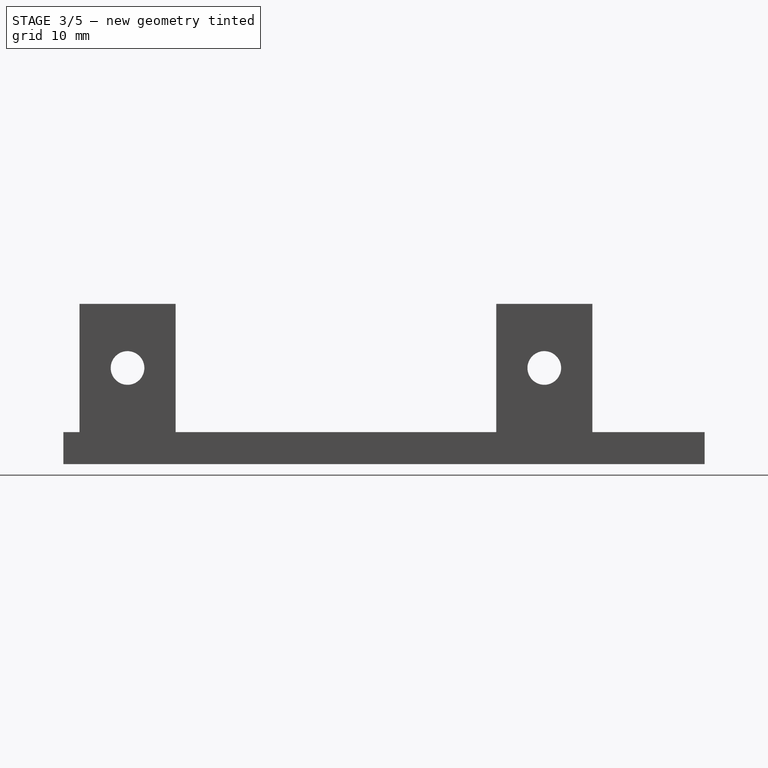
[diagram: stage 3 of 5 — right view after this stage's code; geometry added in this stage tinted green]
FEATURE [PartDesign::Body] Body002  label="BottomCoverRear"
  Group = -> [Sketch011,Sketch013,Sketch014,Sketch015,Sketch016,Pad004,Pocket005,Pad005,Pocket006]
  Origin = -> Origin002
  Placement = pos=(0,0,0) rot=(0,1,0;3.14159rad)
  Tip = -> Pocket006
FEATURE [Sketcher::SketchObject] Sketch017  label="FilmStripOutline003"
  FullyConstrained = false
  MapMode = 5
  Support = -> [XY_Plane003]
  sketch-geometry (97):
    g0: LineSegment StartX=-8 StartY=30.2375 StartZ=0 EndX=8 EndY=30.2375 EndZ=0
    g1: LineSegment StartX=8 StartY=30.2375 StartZ=0 EndX=8 EndY=-30.2375 EndZ=0
    g2: LineSegment StartX=8 StartY=-30.2375 StartZ=0 EndX=-8 EndY=-30.2375 EndZ=0
    g3: LineSegment StartX=-8 StartY=-30.2375 StartZ=0 EndX=-8 EndY=30.2375 EndZ=0
    g4: LineSegment StartX=-5.13 StartY=3.745 StartZ=0 EndX=5.13 EndY=3.745 EndZ=0
    g5: LineSegment StartX=5.13 StartY=3.745 StartZ=0 EndX=5.13 EndY=-3.745 EndZ=0
    g6: LineSegment StartX=5.13 StartY=-3.745 StartZ=0 EndX=-5.13 EndY=-3.745 EndZ=0
    g7: LineSegment StartX=-5.13 StartY=-3.745 StartZ=0 EndX=-5.13 EndY=3.745 EndZ=0
    g8: LineSegment StartX=-5.13 StartY=3.8575 StartZ=0 EndX=5.13 EndY=3.8575 EndZ=0
    g9: LineSegment StartX=5.13 StartY=3.8575 StartZ=0 EndX=5.13 EndY=11.3475 EndZ=0
    g10: LineSegment StartX=5.13 StartY=11.3475 StartZ=0 EndX=-5.13 EndY=11.3475 EndZ=0
    g11: LineSegment StartX=-5.13 StartY=11.3475 StartZ=0 EndX=-5.13 EndY=3.8575 EndZ=0
    g12: LineSegment StartX=-5.13 StartY=12.0925 StartZ=0 EndX=5.13 EndY=12.0925 EndZ=0
    g13: LineSegment StartX=5.13 StartY=12.0925 StartZ=0 EndX=5.13 EndY=19.5825 EndZ=0
    g14: LineSegment StartX=5.13 StartY=19.5825 StartZ=0 EndX=-5.13 EndY=19.5825 EndZ=0
    g15: LineSegment StartX=-5.13 StartY=19.5825 StartZ=0 EndX=-5.13 EndY=12.0925 EndZ=0
    g16: LineSegment StartX=-5.13 StartY=-3.8575 StartZ=0 EndX=5.13 EndY=-3.8575 EndZ=0
    g17: LineSegment StartX=5.13 StartY=-3.8575 StartZ=0 EndX=5.13 EndY=-11.3475 EndZ=0
    g18: LineSegment StartX=5.13 StartY=-11.3475 StartZ=0 EndX=-5.13 EndY=-11.3475 EndZ=0
    g19: LineSegment StartX=-5.13 StartY=-11.3475 StartZ=0 EndX=-5.13 EndY=-3.8575 EndZ=0
    g20: LineSegment StartX=-5.13 StartY=-11.4575 StartZ=0 EndX=5.13 EndY=-11.4575 EndZ=0
    g21: LineSegment StartX=5.13 StartY=-11.4575 StartZ=0 EndX=5.13 EndY=-18.9475 EndZ=0
    g22: LineSegment StartX=5.13 StartY=-18.9475 StartZ=0 EndX=-5.13 EndY=-18.9475 EndZ=0
    g23: LineSegment StartX=-5.13 StartY=-18.9475 StartZ=0 EndX=-5.13 EndY=-11.4575 EndZ=0
    g24: LineSegment StartX=-7.1687 StartY=4.4375 StartZ=0 EndX=-5.1875 EndY=4.4375 EndZ=0
    g25: LineSegment StartX=-5.1875 StartY=4.4375 StartZ=0 EndX=-5.1875 EndY=3.1675 EndZ=0
    g26: LineSegment StartX=-5.1875 StartY=3.1675 StartZ=0 EndX=-7.1687 EndY=3.1675 EndZ=0
    g27: LineSegment StartX=-7.1687 StartY=3.1675 StartZ=0 EndX=-7.1687 EndY=4.4375 EndZ=0
    g28: LineSegment StartX=5.1875 StartY=4.4375 StartZ=0 EndX=7.1687 EndY=4.4375 EndZ=0
    g29: LineSegment StartX=7.1687 StartY=4.4375 StartZ=0 EndX=7.1687 EndY=3.1675 EndZ=0
    g30: LineSegment StartX=7.1687 StartY=3.1675 StartZ=0 EndX=5.1875 EndY=3.1675 EndZ=0
    g31: LineSegment StartX=5.1875 StartY=3.1675 StartZ=0 EndX=5.1875 EndY=4.4375 EndZ=0
    g32: GeomPoint X=6.1781 Y=3.8025 Z=0
    g33: GeomPoint X=-6.1781 Y=3.8025 Z=0
    g34: LineSegment StartX=-7.1687 StartY=-3.1675 StartZ=0 EndX=-5.1875 EndY=-3.1675 EndZ=0
    g35: LineSegment StartX=-5.1875 StartY=-3.1675 StartZ=0 EndX=-5.1875 EndY=-4.4375 EndZ=0
    g36: LineSegment StartX=-5.1875 StartY=-4.4375 StartZ=0 EndX=-7.1687 EndY=-4.4375 EndZ=0
    g37: LineSegment StartX=-7.1687 StartY=-4.4375 StartZ=0 EndX=-7.1687 EndY=-3.1675 EndZ=0
    g38: LineSegment StartX=5.1875 StartY=-3.1675 StartZ=0 EndX=7.1687 EndY=-3.1675 EndZ=0
    g39: LineSegment StartX=7.1687 StartY=-3.1675 StartZ=0 EndX=7.1687 EndY=-4.4375 EndZ=0
    g40: LineSegment StartX=7.1687 StartY=-4.4375 StartZ=0 EndX=5.1875 EndY=-4.4375 EndZ=0
    g41: LineSegment StartX=5.1875 StartY=-4.4375 StartZ=0 EndX=5.1875 EndY=-3.1675 EndZ=0
    g42: GeomPoint X=-6.1781 Y=-3.8025 Z=0
    g43: GeomPoint X=6.1781 Y=-3.8025 Z=0
    g44: LineSegment StartX=-7.1687 StartY=-10.7675 StartZ=0 EndX=-5.1875 EndY=-10.7675 EndZ=0
    g45: LineSegment StartX=-5.1875 StartY=-10.7675 StartZ=0 EndX=-5.1875 EndY=-12.0375 EndZ=0
    g46: LineSegment StartX=-5.1875 StartY=-12.0375 StartZ=0 EndX=-7.1687 EndY=-12.0375 EndZ=0
    g47: LineSegment StartX=-7.1687 StartY=-12.0375 StartZ=0 EndX=-7.1687 EndY=-10.7675 EndZ=0
    g48: LineSegment StartX=5.1875 StartY=-10.7675 StartZ=0 EndX=7.1687 EndY=-10.7675 EndZ=0
    g49: LineSegment StartX=7.1687 StartY=-10.7675 StartZ=0 EndX=7.1687 EndY=-12.0375 EndZ=0
    g50: LineSegment StartX=7.1687 StartY=-12.0375 StartZ=0 EndX=5.1875 EndY=-12.0375 EndZ=0
    g51: LineSegment StartX=5.1875 StartY=-12.0375 StartZ=0 EndX=5.1875 EndY=-10.7675 EndZ=0
    g52: LineSegment StartX=-7.1687 StartY=-18.3675 StartZ=0 EndX=-5.1875 EndY=-18.3675 EndZ=0
    g53: LineSegment StartX=-5.1875 StartY=-18.3675 StartZ=0 EndX=-5.1875 EndY=-19.6375 EndZ=0
    g54: LineSegment StartX=-5.1875 StartY=-19.6375 StartZ=0 EndX=-7.1687 EndY=-19.6375 EndZ=0
    g55: LineSegment StartX=-7.1687 StartY=-19.6375 StartZ=0 EndX=-7.1687 EndY=-18.3675 EndZ=0
    g56: LineSegment StartX=5.1875 StartY=-18.3675 StartZ=0 EndX=7.1687 EndY=-18.3675 EndZ=0
    g57: LineSegment StartX=7.1687 StartY=-18.3675 StartZ=0 EndX=7.1687 EndY=-19.6375 EndZ=0
    g58: LineSegment StartX=7.1687 StartY=-19.6375 StartZ=0 EndX=5.1875 EndY=-19.6375 EndZ=0
    g59: LineSegment StartX=5.1875 StartY=-19.6375 StartZ=0 EndX=5.1875 EndY=-18.3675 EndZ=0
    g60: GeomPoint X=6e-16 Y=-7.6025 Z=0
    g61: GeomPoint X=-1.31121 Y=-21.1583 Z=0
    g62: GeomPoint X=8e-16 Y=-15.2025 Z=0
    g63: LineSegment StartX=-7.1687 StartY=12.0375 StartZ=0 EndX=-5.1875 EndY=12.0375 EndZ=0
    g64: LineSegment StartX=-5.1875 StartY=12.0375 StartZ=0 EndX=-5.1875 EndY=10.7675 EndZ=0
    g65: LineSegment StartX=-5.1875 StartY=10.7675 StartZ=0 EndX=-7.1687 EndY=10.7675 EndZ=0
    g66: LineSegment StartX=-7.1687 StartY=10.7675 StartZ=0 EndX=-7.1687 EndY=12.0375 EndZ=0
    g67: LineSegment StartX=-7.1687 StartY=19.6375 StartZ=0 EndX=-5.1875 EndY=19.6375 EndZ=0
    g68: LineSegment StartX=-5.1875 StartY=19.6375 StartZ=0 EndX=-5.1875 EndY=18.3675 EndZ=0
    g69: LineSegment StartX=-5.1875 StartY=18.3675 StartZ=0 EndX=-7.1687 EndY=18.3675 EndZ=0
    g70: LineSegment StartX=-7.1687 StartY=18.3675 StartZ=0 EndX=-7.1687 EndY=19.6375 EndZ=0
    g71: LineSegment StartX=5.1875 StartY=19.6375 StartZ=0 EndX=7.1687 EndY=19.6375 EndZ=0
    g72: LineSegment StartX=7.1687 StartY=19.6375 StartZ=0 EndX=7.1687 EndY=18.3675 EndZ=0
    g73: LineSegment StartX=7.1687 StartY=18.3675 StartZ=0 EndX=5.1875 EndY=18.3675 EndZ=0
    g74: LineSegment StartX=5.1875 StartY=18.3675 StartZ=0 EndX=5.1875 EndY=19.6375 EndZ=0
    g75: LineSegment StartX=5.1875 StartY=12.0375 StartZ=0 EndX=7.1687 EndY=12.0375 EndZ=0
    g76: LineSegment StartX=7.1687 StartY=12.0375 StartZ=0 EndX=7.1687 EndY=10.7675 EndZ=0
    g77: LineSegment StartX=7.1687 StartY=10.7675 StartZ=0 EndX=5.1875 EndY=10.7675 EndZ=0
    g78: LineSegment StartX=5.1875 StartY=10.7675 StartZ=0 EndX=5.1875 EndY=12.0375 EndZ=0
    g79: LineSegment StartX=5.1875 StartY=27.2375 StartZ=0 EndX=7.1687 EndY=27.2375 EndZ=0
    g80: LineSegment StartX=7.1687 StartY=27.2375 StartZ=0 EndX=7.1687 EndY=25.9675 EndZ=0
    g81: LineSegment StartX=7.1687 StartY=25.9675 StartZ=0 EndX=5.1875 EndY=25.9675 EndZ=0
    g82: LineSegment StartX=5.1875 StartY=25.9675 StartZ=0 EndX=5.1875 EndY=27.2375 EndZ=0
    g83: LineSegment StartX=-7.1687 StartY=27.2375 StartZ=0 EndX=-5.1875 EndY=27.2375 EndZ=0
    g84: LineSegment StartX=-5.1875 StartY=27.2375 StartZ=0 EndX=-5.1875 EndY=25.9675 EndZ=0
    g85: LineSegment StartX=-5.1875 StartY=25.9675 StartZ=0 EndX=-7.1687 EndY=25.9675 EndZ=0
    g86: LineSegment StartX=-7.1687 StartY=25.9675 StartZ=0 EndX=-7.1687 EndY=27.2375 EndZ=0
    g87: LineSegment StartX=5.1875 StartY=-25.9675 StartZ=0 EndX=7.1687 EndY=-25.9675 EndZ=0
    g88: LineSegment StartX=7.1687 StartY=-25.9675 StartZ=0 EndX=7.1687 EndY=-27.2375 EndZ=0
    g89: LineSegment StartX=7.1687 StartY=-27.2375 StartZ=0 EndX=5.1875 EndY=-27.2375 EndZ=0
    g90: LineSegment StartX=5.1875 StartY=-27.2375 StartZ=0 EndX=5.1875 EndY=-25.9675 EndZ=0
    g91: LineSegment StartX=-7.1687 StartY=-25.9675 StartZ=0 EndX=-5.1875 EndY=-25.9675 EndZ=0
    g92: LineSegment StartX=-5.1875 StartY=-25.9675 StartZ=0 EndX=-5.1875 EndY=-27.2375 EndZ=0
    g93: LineSegment StartX=-5.1875 StartY=-27.2375 StartZ=0 EndX=-7.1687 EndY=-27.2375 EndZ=0
    g94: LineSegment StartX=-7.1687 StartY=-27.2375 StartZ=0 EndX=-7.1687 EndY=-25.9675 EndZ=0
    g95: GeomPoint X=3e-16 Y=7.6025 Z=0
    g96: GeomPoint X=0 Y=15.8375 Z=0
  constraints (265):
    c: Coincident(g1,g2)
    c: Coincident(g2,g3)
    c: Coincident(g3,g0)
    c: Horizontal(g0)
    c: Horizontal(g2)
    c: Vertical(g1)
    c: Vertical(g3)
    c: DistanceX(g0,g0) = 16
    c: Coincident(g4,g5)
    c: Coincident(g5,g6)
    c: Coincident(g6,g7)
    c: Coincident(g7,g4)
    c: Horizontal(g4)
    c: Horizontal(g6)
    c: Vertical(g5)
    c: Vertical(g7)
    c: DistanceY(g5,g5) = 7.49
    c: DistanceX(g4,g4) = 10.26
    c: Symmetric(g4,g6,g-1)
    c: Symmetric(g1,g0,g-1)
    c: Coincident(g8,g9)
    c: Coincident(g9,g10)
    c: Coincident(g10,g11)
    c: Coincident(g11,g8)
    c: Horizontal(g8)
    c: Horizontal(g10)
    c: Vertical(g9)
    c: Vertical(g11)
    c: Coincident(g12,g13)
    c: Coincident(g13,g14)
    c: Coincident(g14,g15)
    c: Coincident(g15,g12)
    c: Horizontal(g12)
    c: Horizontal(g14)
    c: Vertical(g13)
    c: Vertical(g15)
    c: Coincident(g16,g17)
    c: Coincident(g17,g18)
    c: Coincident(g18,g19)
    c: Coincident(g19,g16)
    c: Horizontal(g16)
    c: Horizontal(g18)
    c: Vertical(g17)
    c: Vertical(g19)
    c: Coincident(g20,g21)
    c: Coincident(g21,g22)
    c: Coincident(g22,g23)
    c: Coincident(g23,g20)
    c: Horizontal(g20)
    c: Horizontal(g22)
    c: Vertical(g21)
    c: Vertical(g23)
    c: Vertical(g13,g9)
    c: Vertical(g9,g16)
    c: Vertical(g16,g4)
    c: Vertical(g4,g20)
    c: Vertical(g20,g16)
    c: Vertical(g16,g4)
    c: Vertical(g4,g10)
    c: Vertical(g10,g14)
    c: Coincident(g24,g25)
    c: Coincident(g25,g26)
    c: Coincident(g26,g27)
    c: Coincident(g27,g24)
    c: Horizontal(g24)
    c: Horizontal(g26)
    c: Vertical(g25)
    c: Vertical(g27)
    c: Coincident(g28,g29)
    c: Coincident(g29,g30)
    c: Coincident(g30,g31)
    c: Coincident(g31,g28)
    c: Horizontal(g28)
    c: Horizontal(g30)
    c: Vertical(g29)
    c: Vertical(g31)
    c: DistanceY(g25,g25) = 1.27
    c: DistanceX(g24,g24) = 1.9812
    c: Equal(g24,g28)
    c: Equal(g25,g31)
    c: Horizontal(g24,g28)
    c: Symmetric(g24,g26,g33)
    c: Symmetric(g28,g30,g32)
    c: Coincident(g34,g35)
    c: Coincident(g35,g36)
    c: Coincident(g36,g37)
    c: Coincident(g37,g34)
    c: Horizontal(g34)
    c: Horizontal(g36)
    c: Vertical(g35)
    c: Vertical(g37)
    c: Coincident(g38,g39)
    c: Coincident(g39,g40)
    c: Coincident(g40,g41)
    c: Coincident(g41,g38)
    c: Horizontal(g38)
    c: Horizontal(g40)
    c: Vertical(g39)
    c: Vertical(g41)
    c: Equal(g38,g34)
    c: Equal(g34,g26)
    c: Vertical(g25,g34)
    c: Vertical(g38,g30)
    c: Equal(g25,g37)
    c: Equal(g37,g41)
    c: Symmetric(g38,g40,g43)
    c: Symmetric(g34,g36,g42)
    c: DistanceY(g42,g33) = 7.605
    c: Horizontal(g42,g43)
    c: Symmetric(g32,g42,g-1)
    c: DistanceX(g24,g4) = 0.0575
    c: Equal(g11,g15)
    c: Coincident(g44,g45)
    c: Coincident(g45,g46)
    c: Coincident(g46,g47)
    c: Coincident(g47,g44)
    c: Horizontal(g44)
    c: Horizontal(g46)
    c: Vertical(g45)
    c: Vertical(g47)
    c: Coincident(g48,g49)
    c: Coincident(g49,g50)
    c: Coincident(g50,g51)
    c: Coincident(g51,g48)
    c: Horizontal(g48)
    c: Horizontal(g50)
    c: Vertical(g49)
    c: Vertical(g51)
    c: Coincident(g52,g53)
    c: Coincident(g53,g54)
    c: Coincident(g54,g55)
    c: Coincident(g55,g52)
    c: Horizontal(g52)
    c: Horizontal(g54)
    c: Vertical(g53)
    c: Vertical(g55)
    c: Coincident(g56,g57)
    c: Coincident(g57,g58)
    c: Coincident(g58,g59)
    c: Coincident(g59,g56)
    c: Horizontal(g56)
    c: Horizontal(g58)
    c: Vertical(g57)
    c: Vertical(g59)
    c: Vertical(g36,g44)
    c: Vertical(g46,g52)
    c: Vertical(g39,g48)
    c: Vertical(g49,g56)
    c: Equal(g44,g54)
    c: Equal(g58,g50)
    c: Equal(g47,g37)
    c: Equal(g37,g51)
    c: Equal(g51,g59)
    c: Equal(g59,g53)
    c: DistanceY(g48,g39) = 6.33
    c: DistanceY(g56,g49) = 6.33
    c: Horizontal(g44,g48)
    c: Horizontal(g56,g52)
    c: Symmetric(g40,g44,g60)
    c: Symmetric(g16,g17,g60)
    c: Equal(g19,g7)
    c: Symmetric(g45,g56,g62)
    c: Symmetric(g20,g21,g62)
    c: Equal(g23,g19)
    c: Coincident(g63,g64)
    c: Coincident(g64,g65)
    c: Coincident(g65,g66)
    c: Coincident(g66,g63)
    c: Horizontal(g63)
    c: Horizontal(g65)
    c: Vertical(g64)
    c: Vertical(g66)
    c: Coincident(g67,g68)
    c: Coincident(g68,g69)
    c: Coincident(g69,g70)
    c: Coincident(g70,g67)
    c: Horizontal(g67)
    c: Horizontal(g69)
    c: Vertical(g68)
    c: Vertical(g70)
    c: Coincident(g71,g72)
    c: Coincident(g72,g73)
    c: Coincident(g73,g74)
    c: Coincident(g74,g71)
    c: Horizontal(g71)
    c: Horizontal(g73)
    c: Vertical(g72)
    c: Vertical(g74)
    c: Coincident(g75,g76)
    c: Coincident(g76,g77)
    c: Coincident(g77,g78)
    c: Coincident(g78,g75)
    c: Horizontal(g75)
    c: Horizontal(g77)
    c: Vertical(g76)
    c: Vertical(g78)
    c: Coincident(g79,g80)
    c: Coincident(g80,g81)
    c: Coincident(g81,g82)
    c: Coincident(g82,g79)
    c: Horizontal(g79)
    c: Horizontal(g81)
    c: Vertical(g80)
    c: Vertical(g82)
    c: Coincident(g83,g84)
    c: Coincident(g84,g85)
    c: Coincident(g85,g86)
    c: Coincident(g86,g83)
    c: Horizontal(g83)
    c: Horizontal(g85)
    c: Vertical(g84)
    c: Vertical(g86)
    c: Coincident(g87,g88)
    c: Coincident(g88,g89)
    c: Coincident(g89,g90)
    c: Coincident(g90,g87)
    c: Horizontal(g87)
    c: Horizontal(g89)
    c: Vertical(g88)
    c: Vertical(g90)
    c: Coincident(g91,g92)
    c: Coincident(g92,g93)
    c: Coincident(g93,g94)
    c: Coincident(g94,g91)
    c: Horizontal(g91)
    c: Horizontal(g93)
    c: Vertical(g92)
    c: Vertical(g94)
    c: Equal(g94,g66)
    c: Equal(g66,g70)
    c: Equal(g70,g86)
    c: Equal(g86,g82)
    c: Equal(g82,g74)
    c: Equal(g74,g78)
    c: Equal(g78,g90)
    c: Equal(g90,g27)
    c: Equal(g83,g79)
    c: Equal(g79,g71)
    c: Equal(g71,g75)
    c: Equal(g75,g63)
    c: Equal(g63,g67)
    c: Equal(g67,g91)
    c: Equal(g91,g87)
    c: Equal(g87,g52)
    c: Horizontal(g91,g87)
    c: Horizontal(g75,g63)
    c: Horizontal(g67,g71)
    c: Horizontal(g81,g84)
    c: Vertical(g84,g67)
    c: Vertical(g67,g63)
    c: Vertical(g81,g71)
    c: Vertical(g71,g75)
    c: Vertical(g87,g58)
    c: Vertical(g53,g91)
    c: DistanceY(g87,g57) = 6.33
    c: DistanceY(g28,g76) = 6.33
    c: DistanceY(g75,g72) = 6.33
    c: DistanceY(g71,g80) = 6.33
    c: Symmetric(g64,g28,g95)
    c: Symmetric(g67,g75,g96)
    c: Symmetric(g9,g8,g95)
    c: Symmetric(g13,g12,g96)
    c: Equal(g11,g7)
    c: DistanceY(g1,g88) = 3
    c: Coincident(g1,g0)
FEATURE [Sketcher::SketchObject] Sketch018
  ExternalGeometry = -> [Sketch017]
  FullyConstrained = true
  MapMode = 5
  Support = -> [XY_Plane003]
  sketch-geometry (5):
    g0: LineSegment StartX=-8 StartY=34.7625 StartZ=0 EndX=8 EndY=34.7625 EndZ=0
    g1: LineSegment StartX=8 StartY=34.7625 StartZ=0 EndX=8 EndY=21.6375 EndZ=0
    g2: LineSegment StartX=8 StartY=21.6375 StartZ=0 EndX=-8 EndY=21.6375 EndZ=0
    g3: LineSegment StartX=-8 StartY=21.6375 StartZ=0 EndX=-8 EndY=34.7625 EndZ=0
    g4: GeomPoint X=0 Y=28.2 Z=0
  constraints (13):
    c: Coincident(g0,g1)
    c: Coincident(g1,g2)
    c: Coincident(g2,g3)
    c: Coincident(g3,g0)
    c: Horizontal(g0)
    c: Horizontal(g2)
    c: Vertical(g1)
    c: Vertical(g3)
    c: DistanceX(g2,g2) = 16
    c: PointOnObject(g4,g-2)
    c: Symmetric(g0,g2,g4)
    c: DistanceY(g-6,g1) = 2
    c: DistanceY(g-3,g0) = 62
FEATURE [PartDesign::Pad] Pad006
  Direction = (0,0,1)
  Length = 1.6
  Length2 = 10
  Profile = -> Sketch018
  ReferenceAxis = -> Sketch018 [N_Axis]
  Type = 0
FEATURE [Sketcher::SketchObject] Sketch019
  ExternalGeometry = -> [Pad006]
  FullyConstrained = true
  MapMode = 5
  Placement = pos=(0,0,1.6) rot=(0,0,1;0rad)
  Support = -> [Pad006]
  sketch-geometry (5):
    g0: LineSegment StartX=-14.1 StartY=34.7625 StartZ=0 EndX=14.1 EndY=34.7625 EndZ=0
    g1: LineSegment StartX=14.1 StartY=34.7625 StartZ=0 EndX=14.1 EndY=21.6375 EndZ=0
    g2: LineSegment StartX=14.1 StartY=21.6375 StartZ=0 EndX=-14.1 EndY=21.6375 EndZ=0
    g3: LineSegment StartX=-14.1 StartY=21.6375 StartZ=0 EndX=-14.1 EndY=34.7625 EndZ=0
    g4: GeomPoint X=0 Y=28.2 Z=0
  constraints (13):
    c: Coincident(g0,g1)
    c: Coincident(g1,g2)
    c: Coincident(g2,g3)
    c: Coincident(g3,g0)
    c: Horizontal(g0)
    c: Horizontal(g2)
    c: Vertical(g1)
    c: Vertical(g3)
    c: PointOnObject(g-3,g0)
    c: PointOnObject(g-4,g2)
    c: DistanceX(g0,g0) = 28.2
    c: Symmetric(g0,g1,g4)
    c: PointOnObject(g4,g-2)
FEATURE [PartDesign::Pad] Pad007
  BaseFeature = -> Pad006
  Direction = (0,0,1)
  Length = 2
  Length2 = 10
  Profile = -> Sketch019
  ReferenceAxis = -> Sketch019 [N_Axis]
  Type = 0
FEATURE [Sketcher::SketchObject] Sketch022  label="FilmStripOutline004"
  FullyConstrained = false
  MapMode = 5
  Support = -> [XY_Plane004]
  sketch-geometry (97):
    g0: LineSegment StartX=-8 StartY=30.2375 StartZ=0 EndX=8 EndY=30.2375 EndZ=0
    g1: LineSegment StartX=8 StartY=30.2375 StartZ=0 EndX=8 EndY=-30.2375 EndZ=0
    g2: LineSegment StartX=8 StartY=-30.2375 StartZ=0 EndX=-8 EndY=-30.2375 EndZ=0
    g3: LineSegment StartX=-8 StartY=-30.2375 StartZ=0 EndX=-8 EndY=30.2375 EndZ=0
    g4: LineSegment StartX=-5.13 StartY=3.745 StartZ=0 EndX=5.13 EndY=3.745 EndZ=0
    g5: LineSegment StartX=5.13 StartY=3.745 StartZ=0 EndX=5.13 EndY=-3.745 EndZ=0
    g6: LineSegment StartX=5.13 StartY=-3.745 StartZ=0 EndX=-5.13 EndY=-3.745 EndZ=0
    g7: LineSegment StartX=-5.13 StartY=-3.745 StartZ=0 EndX=-5.13 EndY=3.745 EndZ=0
    g8: LineSegment StartX=-5.13 StartY=3.8575 StartZ=0 EndX=5.13 EndY=3.8575 EndZ=0
    g9: LineSegment StartX=5.13 StartY=3.8575 StartZ=0 EndX=5.13 EndY=11.3475 EndZ=0
    g10: LineSegment StartX=5.13 StartY=11.3475 StartZ=0 EndX=-5.13 EndY=11.3475 EndZ=0
    g11: LineSegment StartX=-5.13 StartY=11.3475 StartZ=0 EndX=-5.13 EndY=3.8575 EndZ=0
    g12: LineSegment StartX=-5.13 StartY=12.0925 StartZ=0 EndX=5.13 EndY=12.0925 EndZ=0
    g13: LineSegment StartX=5.13 StartY=12.0925 StartZ=0 EndX=5.13 EndY=19.5825 EndZ=0
    g14: LineSegment StartX=5.13 StartY=19.5825 StartZ=0 EndX=-5.13 EndY=19.5825 EndZ=0
    g15: LineSegment StartX=-5.13 StartY=19.5825 StartZ=0 EndX=-5.13 EndY=12.0925 EndZ=0
    g16: LineSegment StartX=-5.13 StartY=-3.8575 StartZ=0 EndX=5.13 EndY=-3.8575 EndZ=0
    g17: LineSegment StartX=5.13 StartY=-3.8575 StartZ=0 EndX=5.13 EndY=-11.3475 EndZ=0
    g18: LineSegment StartX=5.13 StartY=-11.3475 StartZ=0 EndX=-5.13 EndY=-11.3475 EndZ=0
    g19: LineSegment StartX=-5.13 StartY=-11.3475 StartZ=0 EndX=-5.13 EndY=-3.8575 EndZ=0
    g20: LineSegment StartX=-5.13 StartY=-11.4575 StartZ=0 EndX=5.13 EndY=-11.4575 EndZ=0
    g21: LineSegment StartX=5.13 StartY=-11.4575 StartZ=0 EndX=5.13 EndY=-18.9475 EndZ=0
    g22: LineSegment StartX=5.13 StartY=-18.9475 StartZ=0 EndX=-5.13 EndY=-18.9475 EndZ=0
    g23: LineSegment StartX=-5.13 StartY=-18.9475 StartZ=0 EndX=-5.13 EndY=-11.4575 EndZ=0
    g24: LineSegment StartX=-7.1687 StartY=4.4375 StartZ=0 EndX=-5.1875 EndY=4.4375 EndZ=0
    g25: LineSegment StartX=-5.1875 StartY=4.4375 StartZ=0 EndX=-5.1875 EndY=3.1675 EndZ=0
    g26: LineSegment StartX=-5.1875 StartY=3.1675 StartZ=0 EndX=-7.1687 EndY=3.1675 EndZ=0
    g27: LineSegment StartX=-7.1687 StartY=3.1675 StartZ=0 EndX=-7.1687 EndY=4.4375 EndZ=0
    g28: LineSegment StartX=5.1875 StartY=4.4375 StartZ=0 EndX=7.1687 EndY=4.4375 EndZ=0
    g29: LineSegment StartX=7.1687 StartY=4.4375 StartZ=0 EndX=7.1687 EndY=3.1675 EndZ=0
    g30: LineSegment StartX=7.1687 StartY=3.1675 StartZ=0 EndX=5.1875 EndY=3.1675 EndZ=0
    g31: LineSegment StartX=5.1875 StartY=3.1675 StartZ=0 EndX=5.1875 EndY=4.4375 EndZ=0
    g32: GeomPoint X=6.1781 Y=3.8025 Z=0
    g33: GeomPoint X=-6.1781 Y=3.8025 Z=0
    g34: LineSegment StartX=-7.1687 StartY=-3.1675 StartZ=0 EndX=-5.1875 EndY=-3.1675 EndZ=0
    g35: LineSegment StartX=-5.1875 StartY=-3.1675 StartZ=0 EndX=-5.1875 EndY=-4.4375 EndZ=0
    g36: LineSegment StartX=-5.1875 StartY=-4.4375 StartZ=0 EndX=-7.1687 EndY=-4.4375 EndZ=0
    g37: LineSegment StartX=-7.1687 StartY=-4.4375 StartZ=0 EndX=-7.1687 EndY=-3.1675 EndZ=0
    g38: LineSegment StartX=5.1875 StartY=-3.1675 StartZ=0 EndX=7.1687 EndY=-3.1675 EndZ=0
    g39: LineSegment StartX=7.1687 StartY=-3.1675 StartZ=0 EndX=7.1687 EndY=-4.4375 EndZ=0
    g40: LineSegment StartX=7.1687 StartY=-4.4375 StartZ=0 EndX=5.1875 EndY=-4.4375 EndZ=0
    g41: LineSegment StartX=5.1875 StartY=-4.4375 StartZ=0 EndX=5.1875 EndY=-3.1675 EndZ=0
    g42: GeomPoint X=-6.1781 Y=-3.8025 Z=0
    g43: GeomPoint X=6.1781 Y=-3.8025 Z=0
    g44: LineSegment StartX=-7.1687 StartY=-10.7675 StartZ=0 EndX=-5.1875 EndY=-10.7675 EndZ=0
    g45: LineSegment StartX=-5.1875 StartY=-10.7675 StartZ=0 EndX=-5.1875 EndY=-12.0375 EndZ=0
    g46: LineSegment StartX=-5.1875 StartY=-12.0375 StartZ=0 EndX=-7.1687 EndY=-12.0375 EndZ=0
    g47: LineSegment StartX=-7.1687 StartY=-12.0375 StartZ=0 EndX=-7.1687 EndY=-10.7675 EndZ=0
    g48: LineSegment StartX=5.1875 StartY=-10.7675 StartZ=0 EndX=7.1687 EndY=-10.7675 EndZ=0
    g49: LineSegment StartX=7.1687 StartY=-10.7675 StartZ=0 EndX=7.1687 EndY=-12.0375 EndZ=0
    g50: LineSegment StartX=7.1687 StartY=-12.0375 StartZ=0 EndX=5.1875 EndY=-12.0375 EndZ=0
    g51: LineSegment StartX=5.1875 StartY=-12.0375 StartZ=0 EndX=5.1875 EndY=-10.7675 EndZ=0
    g52: LineSegment StartX=-7.1687 StartY=-18.3675 StartZ=0 EndX=-5.1875 EndY=-18.3675 EndZ=0
    g53: LineSegment StartX=-5.1875 StartY=-18.3675 StartZ=0 EndX=-5.1875 EndY=-19.6375 EndZ=0
    g54: LineSegment StartX=-5.1875 StartY=-19.6375 StartZ=0 EndX=-7.1687 EndY=-19.6375 EndZ=0
    g55: LineSegment StartX=-7.1687 StartY=-19.6375 StartZ=0 EndX=-7.1687 EndY=-18.3675 EndZ=0
    g56: LineSegment StartX=5.1875 StartY=-18.3675 StartZ=0 EndX=7.1687 EndY=-18.3675 EndZ=0
    g57: LineSegment StartX=7.1687 StartY=-18.3675 StartZ=0 EndX=7.1687 EndY=-19.6375 EndZ=0
    g58: LineSegment StartX=7.1687 StartY=-19.6375 StartZ=0 EndX=5.1875 EndY=-19.6375 EndZ=0
    g59: LineSegment StartX=5.1875 StartY=-19.6375 StartZ=0 EndX=5.1875 EndY=-18.3675 EndZ=0
    g60: GeomPoint X=6e-16 Y=-7.6025 Z=0
    g61: GeomPoint X=-1.31121 Y=-21.1583 Z=0
    g62: GeomPoint X=8e-16 Y=-15.2025 Z=0
    g63: LineSegment StartX=-7.1687 StartY=12.0375 StartZ=0 EndX=-5.1875 EndY=12.0375 EndZ=0
    g64: LineSegment StartX=-5.1875 StartY=12.0375 StartZ=0 EndX=-5.1875 EndY=10.7675 EndZ=0
    g65: LineSegment StartX=-5.1875 StartY=10.7675 StartZ=0 EndX=-7.1687 EndY=10.7675 EndZ=0
    g66: LineSegment StartX=-7.1687 StartY=10.7675 StartZ=0 EndX=-7.1687 EndY=12.0375 EndZ=0
    g67: LineSegment StartX=-7.1687 StartY=19.6375 StartZ=0 EndX=-5.1875 EndY=19.6375 EndZ=0
    g68: LineSegment StartX=-5.1875 StartY=19.6375 StartZ=0 EndX=-5.1875 EndY=18.3675 EndZ=0
    g69: LineSegment StartX=-5.1875 StartY=18.3675 StartZ=0 EndX=-7.1687 EndY=18.3675 EndZ=0
    g70: LineSegment StartX=-7.1687 StartY=18.3675 StartZ=0 EndX=-7.1687 EndY=19.6375 EndZ=0
    g71: LineSegment StartX=5.1875 StartY=19.6375 StartZ=0 EndX=7.1687 EndY=19.6375 EndZ=0
    g72: LineSegment StartX=7.1687 StartY=19.6375 StartZ=0 EndX=7.1687 EndY=18.3675 EndZ=0
    g73: LineSegment StartX=7.1687 StartY=18.3675 StartZ=0 EndX=5.1875 EndY=18.3675 EndZ=0
    g74: LineSegment StartX=5.1875 StartY=18.3675 StartZ=0 EndX=5.1875 EndY=19.6375 EndZ=0
    g75: LineSegment StartX=5.1875 StartY=12.0375 StartZ=0 EndX=7.1687 EndY=12.0375 EndZ=0
    g76: LineSegment StartX=7.1687 StartY=12.0375 StartZ=0 EndX=7.1687 EndY=10.7675 EndZ=0
    g77: LineSegment StartX=7.1687 StartY=10.7675 StartZ=0 EndX=5.1875 EndY=10.7675 EndZ=0
    g78: LineSegment StartX=5.1875 StartY=10.7675 StartZ=0 EndX=5.1875 EndY=12.0375 EndZ=0
    g79: LineSegment StartX=5.1875 StartY=27.2375 StartZ=0 EndX=7.1687 EndY=27.2375 EndZ=0
    g80: LineSegment StartX=7.1687 StartY=27.2375 StartZ=0 EndX=7.1687 EndY=25.9675 EndZ=0
    g81: LineSegment StartX=7.1687 StartY=25.9675 StartZ=0 EndX=5.1875 EndY=25.9675 EndZ=0
    g82: LineSegment StartX=5.1875 StartY=25.9675 StartZ=0 EndX=5.1875 EndY=27.2375 EndZ=0
    g83: LineSegment StartX=-7.1687 StartY=27.2375 StartZ=0 EndX=-5.1875 EndY=27.2375 EndZ=0
    g84: LineSegment StartX=-5.1875 StartY=27.2375 StartZ=0 EndX=-5.1875 EndY=25.9675 EndZ=0
    g85: LineSegment StartX=-5.1875 StartY=25.9675 StartZ=0 EndX=-7.1687 EndY=25.9675 EndZ=0
    g86: LineSegment StartX=-7.1687 StartY=25.9675 StartZ=0 EndX=-7.1687 EndY=27.2375 EndZ=0
    g87: LineSegment StartX=5.1875 StartY=-25.9675 StartZ=0 EndX=7.1687 EndY=-25.9675 EndZ=0
    g88: LineSegment StartX=7.1687 StartY=-25.9675 StartZ=0 EndX=7.1687 EndY=-27.2375 EndZ=0
    g89: LineSegment StartX=7.1687 StartY=-27.2375 StartZ=0 EndX=5.1875 EndY=-27.2375 EndZ=0
    g90: LineSegment StartX=5.1875 StartY=-27.2375 StartZ=0 EndX=5.1875 EndY=-25.9675 EndZ=0
    g91: LineSegment StartX=-7.1687 StartY=-25.9675 StartZ=0 EndX=-5.1875 EndY=-25.9675 EndZ=0
    g92: LineSegment StartX=-5.1875 StartY=-25.9675 StartZ=0 EndX=-5.1875 EndY=-27.2375 EndZ=0
    g93: LineSegment StartX=-5.1875 StartY=-27.2375 StartZ=0 EndX=-7.1687 EndY=-27.2375 EndZ=0
    g94: LineSegment StartX=-7.1687 StartY=-27.2375 StartZ=0 EndX=-7.1687 EndY=-25.9675 EndZ=0
    g95: GeomPoint X=3e-16 Y=7.6025 Z=0
    g96: GeomPoint X=0 Y=15.8375 Z=0
  constraints (265):
    c: Coincident(g1,g2)
    c: Coincident(g2,g3)
    c: Coincident(g3,g0)
    c: Horizontal(g0)
    c: Horizontal(g2)
    c: Vertical(g1)
    c: Vertical(g3)
    c: DistanceX(g0,g0) = 16
    c: Coincident(g4,g5)
    c: Coincident(g5,g6)
    c: Coincident(g6,g7)
    c: Coincident(g7,g4)
    c: Horizontal(g4)
    c: Horizontal(g6)
    c: Vertical(g5)
    c: Vertical(g7)
    c: DistanceY(g5,g5) = 7.49
    c: DistanceX(g4,g4) = 10.26
    c: Symmetric(g4,g6,g-1)
    c: Symmetric(g1,g0,g-1)
    c: Coincident(g8,g9)
    c: Coincident(g9,g10)
    c: Coincident(g10,g11)
    c: Coincident(g11,g8)
    c: Horizontal(g8)
    c: Horizontal(g10)
    c: Vertical(g9)
    c: Vertical(g11)
    c: Coincident(g12,g13)
    c: Coincident(g13,g14)
    c: Coincident(g14,g15)
    c: Coincident(g15,g12)
    c: Horizontal(g12)
    c: Horizontal(g14)
    c: Vertical(g13)
    c: Vertical(g15)
    c: Coincident(g16,g17)
    c: Coincident(g17,g18)
    c: Coincident(g18,g19)
    c: Coincident(g19,g16)
    c: Horizontal(g16)
    c: Horizontal(g18)
    c: Vertical(g17)
    c: Vertical(g19)
    c: Coincident(g20,g21)
    c: Coincident(g21,g22)
    c: Coincident(g22,g23)
    c: Coincident(g23,g20)
    c: Horizontal(g20)
    c: Horizontal(g22)
    c: Vertical(g21)
    c: Vertical(g23)
    c: Vertical(g13,g9)
    c: Vertical(g9,g16)
    c: Vertical(g16,g4)
    c: Vertical(g4,g20)
    c: Vertical(g20,g16)
    c: Vertical(g16,g4)
    c: Vertical(g4,g10)
    c: Vertical(g10,g14)
    c: Coincident(g24,g25)
    c: Coincident(g25,g26)
    c: Coincident(g26,g27)
    c: Coincident(g27,g24)
    c: Horizontal(g24)
    c: Horizontal(g26)
    c: Vertical(g25)
    c: Vertical(g27)
    c: Coincident(g28,g29)
    c: Coincident(g29,g30)
    c: Coincident(g30,g31)
    c: Coincident(g31,g28)
    c: Horizontal(g28)
    c: Horizontal(g30)
    c: Vertical(g29)
    c: Vertical(g31)
    c: DistanceY(g25,g25) = 1.27
    c: DistanceX(g24,g24) = 1.9812
    c: Equal(g24,g28)
    c: Equal(g25,g31)
    c: Horizontal(g24,g28)
    c: Symmetric(g24,g26,g33)
    c: Symmetric(g28,g30,g32)
    c: Coincident(g34,g35)
    c: Coincident(g35,g36)
    c: Coincident(g36,g37)
    c: Coincident(g37,g34)
    c: Horizontal(g34)
    c: Horizontal(g36)
    c: Vertical(g35)
    c: Vertical(g37)
    c: Coincident(g38,g39)
    c: Coincident(g39,g40)
    c: Coincident(g40,g41)
    c: Coincident(g41,g38)
    c: Horizontal(g38)
    c: Horizontal(g40)
    c: Vertical(g39)
    c: Vertical(g41)
    c: Equal(g38,g34)
    c: Equal(g34,g26)
    c: Vertical(g25,g34)
    c: Vertical(g38,g30)
    c: Equal(g25,g37)
    c: Equal(g37,g41)
    c: Symmetric(g38,g40,g43)
    c: Symmetric(g34,g36,g42)
    c: DistanceY(g42,g33) = 7.605
    c: Horizontal(g42,g43)
    c: Symmetric(g32,g42,g-1)
    c: DistanceX(g24,g4) = 0.0575
    c: Equal(g11,g15)
    c: Coincident(g44,g45)
    c: Coincident(g45,g46)
    c: Coincident(g46,g47)
    c: Coincident(g47,g44)
    c: Horizontal(g44)
    c: Horizontal(g46)
    c: Vertical(g45)
    c: Vertical(g47)
    c: Coincident(g48,g49)
    c: Coincident(g49,g50)
    c: Coincident(g50,g51)
    c: Coincident(g51,g48)
    c: Horizontal(g48)
    c: Horizontal(g50)
    c: Vertical(g49)
    c: Vertical(g51)
    c: Coincident(g52,g53)
    c: Coincident(g53,g54)
    c: Coincident(g54,g55)
    c: Coincident(g55,g52)
    c: Horizontal(g52)
    c: Horizontal(g54)
    c: Vertical(g53)
    c: Vertical(g55)
    c: Coincident(g56,g57)
    c: Coincident(g57,g58)
    c: Coincident(g58,g59)
    c: Coincident(g59,g56)
    c: Horizontal(g56)
    c: Horizontal(g58)
    c: Vertical(g57)
    c: Vertical(g59)
    c: Vertical(g36,g44)
    c: Vertical(g46,g52)
    c: Vertical(g39,g48)
    c: Vertical(g49,g56)
    c: Equal(g44,g54)
    c: Equal(g58,g50)
    c: Equal(g47,g37)
    c: Equal(g37,g51)
    c: Equal(g51,g59)
    c: Equal(g59,g53)
    c: DistanceY(g48,g39) = 6.33
    c: DistanceY(g56,g49) = 6.33
    c: Horizontal(g44,g48)
    c: Horizontal(g56,g52)
    c: Symmetric(g40,g44,g60)
    c: Symmetric(g16,g17,g60)
    c: Equal(g19,g7)
    c: Symmetric(g45,g56,g62)
    c: Symmetric(g20,g21,g62)
    c: Equal(g23,g19)
    c: Coincident(g63,g64)
    c: Coincident(g64,g65)
    c: Coincident(g65,g66)
    c: Coincident(g66,g63)
    c: Horizontal(g63)
    c: Horizontal(g65)
    c: Vertical(g64)
    c: Vertical(g66)
    c: Coincident(g67,g68)
    c: Coincident(g68,g69)
    c: Coincident(g69,g70)
    c: Coincident(g70,g67)
    c: Horizontal(g67)
    c: Horizontal(g69)
    c: Vertical(g68)
    c: Vertical(g70)
    c: Coincident(g71,g72)
    c: Coincident(g72,g73)
    c: Coincident(g73,g74)
    c: Coincident(g74,g71)
    c: Horizontal(g71)
    c: Horizontal(g73)
    c: Vertical(g72)
    c: Vertical(g74)
    c: Coincident(g75,g76)
    c: Coincident(g76,g77)
    c: Coincident(g77,g78)
    c: Coincident(g78,g75)
    c: Horizontal(g75)
    c: Horizontal(g77)
    c: Vertical(g76)
    c: Vertical(g78)
    c: Coincident(g79,g80)
    c: Coincident(g80,g81)
    c: Coincident(g81,g82)
    c: Coincident(g82,g79)
    c: Horizontal(g79)
    c: Horizontal(g81)
    c: Vertical(g80)
    c: Vertical(g82)
    c: Coincident(g83,g84)
    c: Coincident(g84,g85)
    c: Coincident(g85,g86)
    c: Coincident(g86,g83)
    c: Horizontal(g83)
    c: Horizontal(g85)
    c: Vertical(g84)
    c: Vertical(g86)
    c: Coincident(g87,g88)
    c: Coincident(g88,g89)
    c: Coincident(g89,g90)
    c: Coincident(g90,g87)
    c: Horizontal(g87)
    c: Horizontal(g89)
    c: Vertical(g88)
    c: Vertical(g90)
    c: Coincident(g91,g92)
    c: Coincident(g92,g93)
    c: Coincident(g93,g94)
    c: Coincident(g94,g91)
    c: Horizontal(g91)
    c: Horizontal(g93)
    c: Vertical(g92)
    c: Vertical(g94)
    c: Equal(g94,g66)
    c: Equal(g66,g70)
    c: Equal(g70,g86)
    c: Equal(g86,g82)
    c: Equal(g82,g74)
    c: Equal(g74,g78)
    c: Equal(g78,g90)
    c: Equal(g90,g27)
    c: Equal(g83,g79)
    c: Equal(g79,g71)
    c: Equal(g71,g75)
    c: Equal(g75,g63)
    c: Equal(g63,g67)
    c: Equal(g67,g91)
    c: Equal(g91,g87)
    c: Equal(g87,g52)
    c: Horizontal(g91,g87)
    c: Horizontal(g75,g63)
    c: Horizontal(g67,g71)
    c: Horizontal(g81,g84)
    c: Vertical(g84,g67)
    c: Vertical(g67,g63)
    c: Vertical(g81,g71)
    c: Vertical(g71,g75)
    c: Vertical(g87,g58)
    c: Vertical(g53,g91)
    c: DistanceY(g87,g57) = 6.33
    c: DistanceY(g28,g76) = 6.33
    c: DistanceY(g75,g72) = 6.33
    c: DistanceY(g71,g80) = 6.33
    c: Symmetric(g64,g28,g95)
    c: Symmetric(g67,g75,g96)
    c: Symmetric(g9,g8,g95)
    c: Symmetric(g13,g12,g96)
    c: Equal(g11,g7)
    c: DistanceY(g1,g88) = 3
    c: Coincident(g1,g0)
FEATURE [Sketcher::SketchObject] Sketch023
  ExternalGeometry = -> [Sketch022]
  FullyConstrained = true
  MapMode = 5
  Support = -> [XY_Plane004]
  sketch-geometry (5):
    g0: LineSegment StartX=-14.1 StartY=2.7625 StartZ=0 EndX=14.1 EndY=2.7625 EndZ=0
    g1: LineSegment StartX=14.1 StartY=2.7625 StartZ=0 EndX=14.1 EndY=-37.2375 EndZ=0
    g2: LineSegment StartX=14.1 StartY=-37.2375 StartZ=0 EndX=-14.1 EndY=-37.2375 EndZ=0
    g3: LineSegment StartX=-14.1 StartY=-37.2375 StartZ=0 EndX=-14.1 EndY=2.7625 EndZ=0
    g4: GeomPoint X=0 Y=-17.2375 Z=0
  constraints (13):
    c: Coincident(g0,g1)
    c: Coincident(g1,g2)
    c: Coincident(g2,g3)
    c: Coincident(g3,g0)
    c: Horizontal(g0)
    c: Horizontal(g2)
    c: Vertical(g1)
    c: Vertical(g3)
    c: DistanceY(g1,g1) = 40
    c: DistanceY(g1,g-7) = 10
    c: DistanceX(g2,g2) = 28.2
    c: Symmetric(g2,g0,g4)
    c: PointOnObject(g4,g-2)
FEATURE [PartDesign::Pad] Pad008  label="MainBody001"
  Direction = (0,0,1)
  Length = 4
  Length2 = 10
  Profile = -> Sketch023
  ReferenceAxis = -> Sketch023 [N_Axis]
  Type = 0
FEATURE [Sketcher::SketchObject] Sketch024
  ExternalGeometry = -> [Pad008]
  FullyConstrained = true
  MapMode = 5
  Placement = pos=(0,0,4) rot=(0,0,1;0rad)
  Support = -> [Pad008]
  sketch-geometry (5):
    g0: LineSegment StartX=-8.1 StartY=2.7625 StartZ=0 EndX=8.1 EndY=2.7625 EndZ=0
    g1: LineSegment StartX=8.1 StartY=2.7625 StartZ=0 EndX=8.1 EndY=-37.2375 EndZ=0
    g2: LineSegment StartX=8.1 StartY=-37.2375 StartZ=0 EndX=-8.1 EndY=-37.2375 EndZ=0
    g3: LineSegment StartX=-8.1 StartY=-37.2375 StartZ=0 EndX=-8.1 EndY=2.7625 EndZ=0
    g4: GeomPoint X=0 Y=-17.2375 Z=0
  constraints (13):
    c: Coincident(g0,g1)
    c: Coincident(g1,g2)
    c: Coincident(g2,g3)
    c: Coincident(g3,g0)
    c: Horizontal(g0)
    c: Horizontal(g2)
    c: Vertical(g1)
    c: Vertical(g3)
    c: DistanceX(g2,g2) = 16.2
    c: PointOnObject(g4,g-2)
    c: Symmetric(g0,g2,g4)
    c: PointOnObject(g0,g-3)
    c: PointOnObject(g2,g-4)
FEATURE [PartDesign::Pocket] Pocket009  label="FilmCutOut001"
  BaseFeature = -> Pad008
  Direction = (0,0,-1)
  Length = 2
  Length2 = 5
  Profile = -> Sketch024
  ReferenceAxis = -> Sketch024 [N_Axis]
  Type = 0
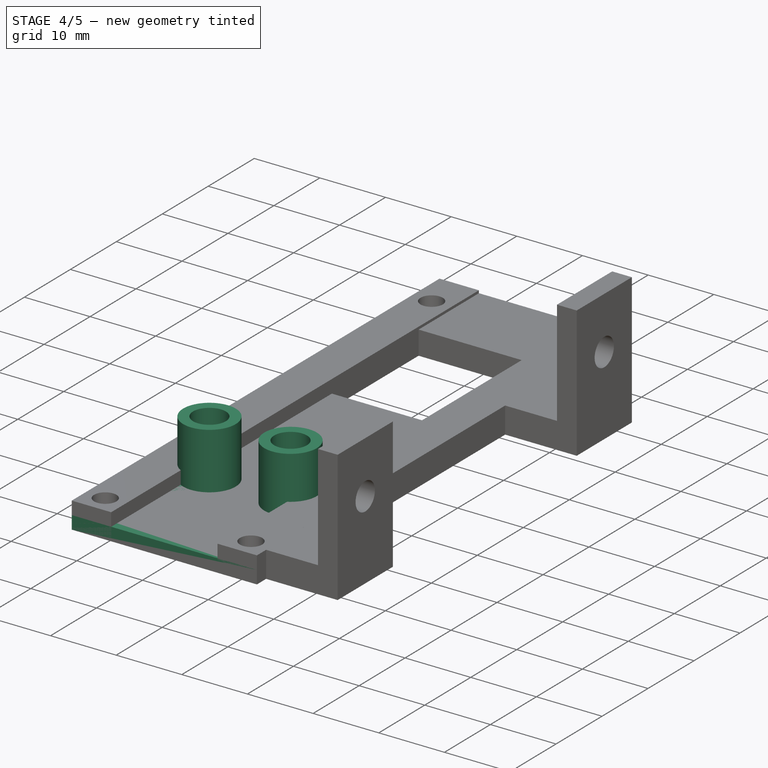
[diagram: stage 4 of 5 — iso view after this stage's code; geometry added in this stage tinted green]
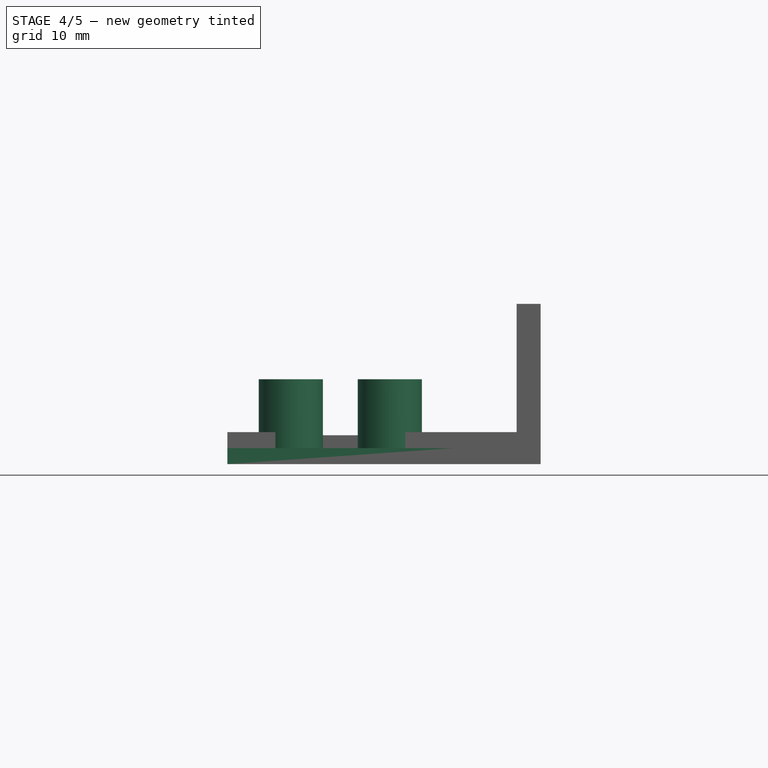
[diagram: stage 4 of 5 — front view after this stage's code; geometry added in this stage tinted green]
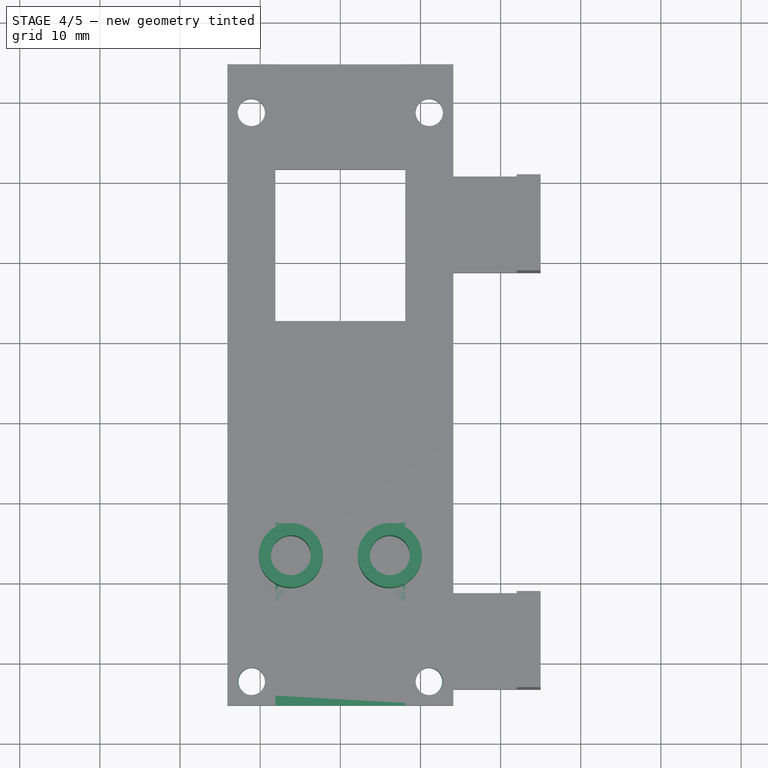
[diagram: stage 4 of 5 — top view after this stage's code; geometry added in this stage tinted green]
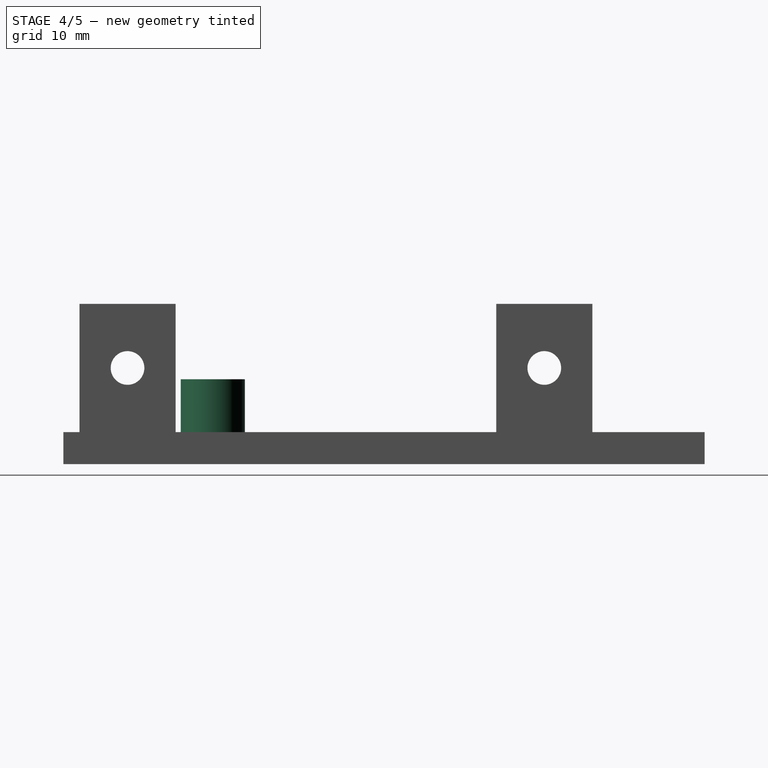
[diagram: stage 4 of 5 — right view after this stage's code; geometry added in this stage tinted green]
FEATURE [Sketcher::SketchObject] Sketch011  label="FilmStripOutline002"
  FullyConstrained = false
  MapMode = 5
  Support = -> [XY_Plane002]
  sketch-geometry (97):
    g0: LineSegment StartX=-8 StartY=30.2375 StartZ=0 EndX=8 EndY=30.2375 EndZ=0
    g1: LineSegment StartX=8 StartY=30.2375 StartZ=0 EndX=8 EndY=-30.2375 EndZ=0
    g2: LineSegment StartX=8 StartY=-30.2375 StartZ=0 EndX=-8 EndY=-30.2375 EndZ=0
    g3: LineSegment StartX=-8 StartY=-30.2375 StartZ=0 EndX=-8 EndY=30.2375 EndZ=0
    g4: LineSegment StartX=-5.13 StartY=3.745 StartZ=0 EndX=5.13 EndY=3.745 EndZ=0
    g5: LineSegment StartX=5.13 StartY=3.745 StartZ=0 EndX=5.13 EndY=-3.745 EndZ=0
    g6: LineSegment StartX=5.13 StartY=-3.745 StartZ=0 EndX=-5.13 EndY=-3.745 EndZ=0
    g7: LineSegment StartX=-5.13 StartY=-3.745 StartZ=0 EndX=-5.13 EndY=3.745 EndZ=0
    g8: LineSegment StartX=-5.13 StartY=3.8575 StartZ=0 EndX=5.13 EndY=3.8575 EndZ=0
    g9: LineSegment StartX=5.13 StartY=3.8575 StartZ=0 EndX=5.13 EndY=11.3475 EndZ=0
    g10: LineSegment StartX=5.13 StartY=11.3475 StartZ=0 EndX=-5.13 EndY=11.3475 EndZ=0
    g11: LineSegment StartX=-5.13 StartY=11.3475 StartZ=0 EndX=-5.13 EndY=3.8575 EndZ=0
    g12: LineSegment StartX=-5.13 StartY=12.0925 StartZ=0 EndX=5.13 EndY=12.0925 EndZ=0
    g13: LineSegment StartX=5.13 StartY=12.0925 StartZ=0 EndX=5.13 EndY=19.5825 EndZ=0
    g14: LineSegment StartX=5.13 StartY=19.5825 StartZ=0 EndX=-5.13 EndY=19.5825 EndZ=0
    g15: LineSegment StartX=-5.13 StartY=19.5825 StartZ=0 EndX=-5.13 EndY=12.0925 EndZ=0
    g16: LineSegment StartX=-5.13 StartY=-3.8575 StartZ=0 EndX=5.13 EndY=-3.8575 EndZ=0
    g17: LineSegment StartX=5.13 StartY=-3.8575 StartZ=0 EndX=5.13 EndY=-11.3475 EndZ=0
    g18: LineSegment StartX=5.13 StartY=-11.3475 StartZ=0 EndX=-5.13 EndY=-11.3475 EndZ=0
    g19: LineSegment StartX=-5.13 StartY=-11.3475 StartZ=0 EndX=-5.13 EndY=-3.8575 EndZ=0
    g20: LineSegment StartX=-5.13 StartY=-11.4575 StartZ=0 EndX=5.13 EndY=-11.4575 EndZ=0
    g21: LineSegment StartX=5.13 StartY=-11.4575 StartZ=0 EndX=5.13 EndY=-18.9475 EndZ=0
    g22: LineSegment StartX=5.13 StartY=-18.9475 StartZ=0 EndX=-5.13 EndY=-18.9475 EndZ=0
    g23: LineSegment StartX=-5.13 StartY=-18.9475 StartZ=0 EndX=-5.13 EndY=-11.4575 EndZ=0
    g24: LineSegment StartX=-7.1687 StartY=4.4375 StartZ=0 EndX=-5.1875 EndY=4.4375 EndZ=0
    g25: LineSegment StartX=-5.1875 StartY=4.4375 StartZ=0 EndX=-5.1875 EndY=3.1675 EndZ=0
    g26: LineSegment StartX=-5.1875 StartY=3.1675 StartZ=0 EndX=-7.1687 EndY=3.1675 EndZ=0
    g27: LineSegment StartX=-7.1687 StartY=3.1675 StartZ=0 EndX=-7.1687 EndY=4.4375 EndZ=0
    g28: LineSegment StartX=5.1875 StartY=4.4375 StartZ=0 EndX=7.1687 EndY=4.4375 EndZ=0
    g29: LineSegment StartX=7.1687 StartY=4.4375 StartZ=0 EndX=7.1687 EndY=3.1675 EndZ=0
    g30: LineSegment StartX=7.1687 StartY=3.1675 StartZ=0 EndX=5.1875 EndY=3.1675 EndZ=0
    g31: LineSegment StartX=5.1875 StartY=3.1675 StartZ=0 EndX=5.1875 EndY=4.4375 EndZ=0
    g32: GeomPoint X=6.1781 Y=3.8025 Z=0
    g33: GeomPoint X=-6.1781 Y=3.8025 Z=0
    g34: LineSegment StartX=-7.1687 StartY=-3.1675 StartZ=0 EndX=-5.1875 EndY=-3.1675 EndZ=0
    g35: LineSegment StartX=-5.1875 StartY=-3.1675 StartZ=0 EndX=-5.1875 EndY=-4.4375 EndZ=0
    g36: LineSegment StartX=-5.1875 StartY=-4.4375 StartZ=0 EndX=-7.1687 EndY=-4.4375 EndZ=0
    g37: LineSegment StartX=-7.1687 StartY=-4.4375 StartZ=0 EndX=-7.1687 EndY=-3.1675 EndZ=0
    g38: LineSegment StartX=5.1875 StartY=-3.1675 StartZ=0 EndX=7.1687 EndY=-3.1675 EndZ=0
    g39: LineSegment StartX=7.1687 StartY=-3.1675 StartZ=0 EndX=7.1687 EndY=-4.4375 EndZ=0
    g40: LineSegment StartX=7.1687 StartY=-4.4375 StartZ=0 EndX=5.1875 EndY=-4.4375 EndZ=0
    g41: LineSegment StartX=5.1875 StartY=-4.4375 StartZ=0 EndX=5.1875 EndY=-3.1675 EndZ=0
    g42: GeomPoint X=-6.1781 Y=-3.8025 Z=0
    g43: GeomPoint X=6.1781 Y=-3.8025 Z=0
    g44: LineSegment StartX=-7.1687 StartY=-10.7675 StartZ=0 EndX=-5.1875 EndY=-10.7675 EndZ=0
    g45: LineSegment StartX=-5.1875 StartY=-10.7675 StartZ=0 EndX=-5.1875 EndY=-12.0375 EndZ=0
    g46: LineSegment StartX=-5.1875 StartY=-12.0375 StartZ=0 EndX=-7.1687 EndY=-12.0375 EndZ=0
    g47: LineSegment StartX=-7.1687 StartY=-12.0375 StartZ=0 EndX=-7.1687 EndY=-10.7675 EndZ=0
    g48: LineSegment StartX=5.1875 StartY=-10.7675 StartZ=0 EndX=7.1687 EndY=-10.7675 EndZ=0
    g49: LineSegment StartX=7.1687 StartY=-10.7675 StartZ=0 EndX=7.1687 EndY=-12.0375 EndZ=0
    g50: LineSegment StartX=7.1687 StartY=-12.0375 StartZ=0 EndX=5.1875 EndY=-12.0375 EndZ=0
    g51: LineSegment StartX=5.1875 StartY=-12.0375 StartZ=0 EndX=5.1875 EndY=-10.7675 EndZ=0
    g52: LineSegment StartX=-7.1687 StartY=-18.3675 StartZ=0 EndX=-5.1875 EndY=-18.3675 EndZ=0
    g53: LineSegment StartX=-5.1875 StartY=-18.3675 StartZ=0 EndX=-5.1875 EndY=-19.6375 EndZ=0
    g54: LineSegment StartX=-5.1875 StartY=-19.6375 StartZ=0 EndX=-7.1687 EndY=-19.6375 EndZ=0
    g55: LineSegment StartX=-7.1687 StartY=-19.6375 StartZ=0 EndX=-7.1687 EndY=-18.3675 EndZ=0
    g56: LineSegment StartX=5.1875 StartY=-18.3675 StartZ=0 EndX=7.1687 EndY=-18.3675 EndZ=0
    g57: LineSegment StartX=7.1687 StartY=-18.3675 StartZ=0 EndX=7.1687 EndY=-19.6375 EndZ=0
    g58: LineSegment StartX=7.1687 StartY=-19.6375 StartZ=0 EndX=5.1875 EndY=-19.6375 EndZ=0
    g59: LineSegment StartX=5.1875 StartY=-19.6375 StartZ=0 EndX=5.1875 EndY=-18.3675 EndZ=0
    g60: GeomPoint X=6e-16 Y=-7.6025 Z=0
    g61: GeomPoint X=-1.31121 Y=-21.1583 Z=0
    g62: GeomPoint X=8e-16 Y=-15.2025 Z=0
    g63: LineSegment StartX=-7.1687 StartY=12.0375 StartZ=0 EndX=-5.1875 EndY=12.0375 EndZ=0
    g64: LineSegment StartX=-5.1875 StartY=12.0375 StartZ=0 EndX=-5.1875 EndY=10.7675 EndZ=0
    g65: LineSegment StartX=-5.1875 StartY=10.7675 StartZ=0 EndX=-7.1687 EndY=10.7675 EndZ=0
    g66: LineSegment StartX=-7.1687 StartY=10.7675 StartZ=0 EndX=-7.1687 EndY=12.0375 EndZ=0
    g67: LineSegment StartX=-7.1687 StartY=19.6375 StartZ=0 EndX=-5.1875 EndY=19.6375 EndZ=0
    g68: LineSegment StartX=-5.1875 StartY=19.6375 StartZ=0 EndX=-5.1875 EndY=18.3675 EndZ=0
    g69: LineSegment StartX=-5.1875 StartY=18.3675 StartZ=0 EndX=-7.1687 EndY=18.3675 EndZ=0
    g70: LineSegment StartX=-7.1687 StartY=18.3675 StartZ=0 EndX=-7.1687 EndY=19.6375 EndZ=0
    g71: LineSegment StartX=5.1875 StartY=19.6375 StartZ=0 EndX=7.1687 EndY=19.6375 EndZ=0
    g72: LineSegment StartX=7.1687 StartY=19.6375 StartZ=0 EndX=7.1687 EndY=18.3675 EndZ=0
    g73: LineSegment StartX=7.1687 StartY=18.3675 StartZ=0 EndX=5.1875 EndY=18.3675 EndZ=0
    g74: LineSegment StartX=5.1875 StartY=18.3675 StartZ=0 EndX=5.1875 EndY=19.6375 EndZ=0
    g75: LineSegment StartX=5.1875 StartY=12.0375 StartZ=0 EndX=7.1687 EndY=12.0375 EndZ=0
    g76: LineSegment StartX=7.1687 StartY=12.0375 StartZ=0 EndX=7.1687 EndY=10.7675 EndZ=0
    g77: LineSegment StartX=7.1687 StartY=10.7675 StartZ=0 EndX=5.1875 EndY=10.7675 EndZ=0
    g78: LineSegment StartX=5.1875 StartY=10.7675 StartZ=0 EndX=5.1875 EndY=12.0375 EndZ=0
    g79: LineSegment StartX=5.1875 StartY=27.2375 StartZ=0 EndX=7.1687 EndY=27.2375 EndZ=0
    g80: LineSegment StartX=7.1687 StartY=27.2375 StartZ=0 EndX=7.1687 EndY=25.9675 EndZ=0
    g81: LineSegment StartX=7.1687 StartY=25.9675 StartZ=0 EndX=5.1875 EndY=25.9675 EndZ=0
    g82: LineSegment StartX=5.1875 StartY=25.9675 StartZ=0 EndX=5.1875 EndY=27.2375 EndZ=0
    g83: LineSegment StartX=-7.1687 StartY=27.2375 StartZ=0 EndX=-5.1875 EndY=27.2375 EndZ=0
    g84: LineSegment StartX=-5.1875 StartY=27.2375 StartZ=0 EndX=-5.1875 EndY=25.9675 EndZ=0
    g85: LineSegment StartX=-5.1875 StartY=25.9675 StartZ=0 EndX=-7.1687 EndY=25.9675 EndZ=0
    g86: LineSegment StartX=-7.1687 StartY=25.9675 StartZ=0 EndX=-7.1687 EndY=27.2375 EndZ=0
    g87: LineSegment StartX=5.1875 StartY=-25.9675 StartZ=0 EndX=7.1687 EndY=-25.9675 EndZ=0
    g88: LineSegment StartX=7.1687 StartY=-25.9675 StartZ=0 EndX=7.1687 EndY=-27.2375 EndZ=0
    g89: LineSegment StartX=7.1687 StartY=-27.2375 StartZ=0 EndX=5.1875 EndY=-27.2375 EndZ=0
    g90: LineSegment StartX=5.1875 StartY=-27.2375 StartZ=0 EndX=5.1875 EndY=-25.9675 EndZ=0
    g91: LineSegment StartX=-7.1687 StartY=-25.9675 StartZ=0 EndX=-5.1875 EndY=-25.9675 EndZ=0
    g92: LineSegment StartX=-5.1875 StartY=-25.9675 StartZ=0 EndX=-5.1875 EndY=-27.2375 EndZ=0
    g93: LineSegment StartX=-5.1875 StartY=-27.2375 StartZ=0 EndX=-7.1687 EndY=-27.2375 EndZ=0
    g94: LineSegment StartX=-7.1687 StartY=-27.2375 StartZ=0 EndX=-7.1687 EndY=-25.9675 EndZ=0
    g95: GeomPoint X=3e-16 Y=7.6025 Z=0
    g96: GeomPoint X=0 Y=15.8375 Z=0
  constraints (265):
    c: Coincident(g1,g2)
    c: Coincident(g2,g3)
    c: Coincident(g3,g0)
    c: Horizontal(g0)
    c: Horizontal(g2)
    c: Vertical(g1)
    c: Vertical(g3)
    c: DistanceX(g0,g0) = 16
    c: Coincident(g4,g5)
    c: Coincident(g5,g6)
    c: Coincident(g6,g7)
    c: Coincident(g7,g4)
    c: Horizontal(g4)
    c: Horizontal(g6)
    c: Vertical(g5)
    c: Vertical(g7)
    c: DistanceY(g5,g5) = 7.49
    c: DistanceX(g4,g4) = 10.26
    c: Symmetric(g4,g6,g-1)
    c: Symmetric(g1,g0,g-1)
    c: Coincident(g8,g9)
    c: Coincident(g9,g10)
    c: Coincident(g10,g11)
    c: Coincident(g11,g8)
    c: Horizontal(g8)
    c: Horizontal(g10)
    c: Vertical(g9)
    c: Vertical(g11)
    c: Coincident(g12,g13)
    c: Coincident(g13,g14)
    c: Coincident(g14,g15)
    c: Coincident(g15,g12)
    c: Horizontal(g12)
    c: Horizontal(g14)
    c: Vertical(g13)
    c: Vertical(g15)
    c: Coincident(g16,g17)
    c: Coincident(g17,g18)
    c: Coincident(g18,g19)
    c: Coincident(g19,g16)
    c: Horizontal(g16)
    c: Horizontal(g18)
    c: Vertical(g17)
    c: Vertical(g19)
    c: Coincident(g20,g21)
    c: Coincident(g21,g22)
    c: Coincident(g22,g23)
    c: Coincident(g23,g20)
    c: Horizontal(g20)
    c: Horizontal(g22)
    c: Vertical(g21)
    c: Vertical(g23)
    c: Vertical(g13,g9)
    c: Vertical(g9,g16)
    c: Vertical(g16,g4)
    c: Vertical(g4,g20)
    c: Vertical(g20,g16)
    c: Vertical(g16,g4)
    c: Vertical(g4,g10)
    c: Vertical(g10,g14)
    c: Coincident(g24,g25)
    c: Coincident(g25,g26)
    c: Coincident(g26,g27)
    c: Coincident(g27,g24)
    c: Horizontal(g24)
    c: Horizontal(g26)
    c: Vertical(g25)
    c: Vertical(g27)
    c: Coincident(g28,g29)
    c: Coincident(g29,g30)
    c: Coincident(g30,g31)
    c: Coincident(g31,g28)
    c: Horizontal(g28)
    c: Horizontal(g30)
    c: Vertical(g29)
    c: Vertical(g31)
    c: DistanceY(g25,g25) = 1.27
    c: DistanceX(g24,g24) = 1.9812
    c: Equal(g24,g28)
    c: Equal(g25,g31)
    c: Horizontal(g24,g28)
    c: Symmetric(g24,g26,g33)
    c: Symmetric(g28,g30,g32)
    c: Coincident(g34,g35)
    c: Coincident(g35,g36)
    c: Coincident(g36,g37)
    c: Coincident(g37,g34)
    c: Horizontal(g34)
    c: Horizontal(g36)
    c: Vertical(g35)
    c: Vertical(g37)
    c: Coincident(g38,g39)
    c: Coincident(g39,g40)
    c: Coincident(g40,g41)
    c: Coincident(g41,g38)
    c: Horizontal(g38)
    c: Horizontal(g40)
    c: Vertical(g39)
    c: Vertical(g41)
    c: Equal(g38,g34)
    c: Equal(g34,g26)
    c: Vertical(g25,g34)
    c: Vertical(g38,g30)
    c: Equal(g25,g37)
    c: Equal(g37,g41)
    c: Symmetric(g38,g40,g43)
    c: Symmetric(g34,g36,g42)
    c: DistanceY(g42,g33) = 7.605
    c: Horizontal(g42,g43)
    c: Symmetric(g32,g42,g-1)
    c: DistanceX(g24,g4) = 0.0575
    c: Equal(g11,g15)
    c: Coincident(g44,g45)
    c: Coincident(g45,g46)
    c: Coincident(g46,g47)
    c: Coincident(g47,g44)
    c: Horizontal(g44)
    c: Horizontal(g46)
    c: Vertical(g45)
    c: Vertical(g47)
    c: Coincident(g48,g49)
    c: Coincident(g49,g50)
    c: Coincident(g50,g51)
    c: Coincident(g51,g48)
    c: Horizontal(g48)
    c: Horizontal(g50)
    c: Vertical(g49)
    c: Vertical(g51)
    c: Coincident(g52,g53)
    c: Coincident(g53,g54)
    c: Coincident(g54,g55)
    c: Coincident(g55,g52)
    c: Horizontal(g52)
    c: Horizontal(g54)
    c: Vertical(g53)
    c: Vertical(g55)
    c: Coincident(g56,g57)
    c: Coincident(g57,g58)
    c: Coincident(g58,g59)
    c: Coincident(g59,g56)
    c: Horizontal(g56)
    c: Horizontal(g58)
    c: Vertical(g57)
    c: Vertical(g59)
    c: Vertical(g36,g44)
    c: Vertical(g46,g52)
    c: Vertical(g39,g48)
    c: Vertical(g49,g56)
    c: Equal(g44,g54)
    c: Equal(g58,g50)
    c: Equal(g47,g37)
    c: Equal(g37,g51)
    c: Equal(g51,g59)
    c: Equal(g59,g53)
    c: DistanceY(g48,g39) = 6.33
    c: DistanceY(g56,g49) = 6.33
    c: Horizontal(g44,g48)
    c: Horizontal(g56,g52)
    c: Symmetric(g40,g44,g60)
    c: Symmetric(g16,g17,g60)
    c: Equal(g19,g7)
    c: Symmetric(g45,g56,g62)
    c: Symmetric(g20,g21,g62)
    c: Equal(g23,g19)
    c: Coincident(g63,g64)
    c: Coincident(g64,g65)
    c: Coincident(g65,g66)
    c: Coincident(g66,g63)
    c: Horizontal(g63)
    c: Horizontal(g65)
    c: Vertical(g64)
    c: Vertical(g66)
    c: Coincident(g67,g68)
    c: Coincident(g68,g69)
    c: Coincident(g69,g70)
    c: Coincident(g70,g67)
    c: Horizontal(g67)
    c: Horizontal(g69)
    c: Vertical(g68)
    c: Vertical(g70)
    c: Coincident(g71,g72)
    c: Coincident(g72,g73)
    c: Coincident(g73,g74)
    c: Coincident(g74,g71)
    c: Horizontal(g71)
    c: Horizontal(g73)
    c: Vertical(g72)
    c: Vertical(g74)
    c: Coincident(g75,g76)
    c: Coincident(g76,g77)
    c: Coincident(g77,g78)
    c: Coincident(g78,g75)
    c: Horizontal(g75)
    c: Horizontal(g77)
    c: Vertical(g76)
    c: Vertical(g78)
    c: Coincident(g79,g80)
    c: Coincident(g80,g81)
    c: Coincident(g81,g82)
    c: Coincident(g82,g79)
    c: Horizontal(g79)
    c: Horizontal(g81)
    c: Vertical(g80)
    c: Vertical(g82)
    c: Coincident(g83,g84)
    c: Coincident(g84,g85)
    c: Coincident(g85,g86)
    c: Coincident(g86,g83)
    c: Horizontal(g83)
    c: Horizontal(g85)
    c: Vertical(g84)
    c: Vertical(g86)
    c: Coincident(g87,g88)
    c: Coincident(g88,g89)
    c: Coincident(g89,g90)
    c: Coincident(g90,g87)
    c: Horizontal(g87)
    c: Horizontal(g89)
    c: Vertical(g88)
    c: Vertical(g90)
    c: Coincident(g91,g92)
    c: Coincident(g92,g93)
    c: Coincident(g93,g94)
    c: Coincident(g94,g91)
    c: Horizontal(g91)
    c: Horizontal(g93)
    c: Vertical(g92)
    c: Vertical(g94)
    c: Equal(g94,g66)
    c: Equal(g66,g70)
    c: Equal(g70,g86)
    c: Equal(g86,g82)
    c: Equal(g82,g74)
    c: Equal(g74,g78)
    c: Equal(g78,g90)
    c: Equal(g90,g27)
    c: Equal(g83,g79)
    c: Equal(g79,g71)
    c: Equal(g71,g75)
    c: Equal(g75,g63)
    c: Equal(g63,g67)
    c: Equal(g67,g91)
    c: Equal(g91,g87)
    c: Equal(g87,g52)
    c: Horizontal(g91,g87)
    c: Horizontal(g75,g63)
    c: Horizontal(g67,g71)
    c: Horizontal(g81,g84)
    c: Vertical(g84,g67)
    c: Vertical(g67,g63)
    c: Vertical(g81,g71)
    c: Vertical(g71,g75)
    c: Vertical(g87,g58)
    c: Vertical(g53,g91)
    c: DistanceY(g87,g57) = 6.33
    c: DistanceY(g28,g76) = 6.33
    c: DistanceY(g75,g72) = 6.33
    c: DistanceY(g71,g80) = 6.33
    c: Symmetric(g64,g28,g95)
    c: Symmetric(g67,g75,g96)
    c: Symmetric(g9,g8,g95)
    c: Symmetric(g13,g12,g96)
    c: Equal(g11,g7)
    c: DistanceY(g1,g88) = 3
    c: Coincident(g1,g0)
FEATURE [Sketcher::SketchObject] Sketch013
  ExternalGeometry = -> [Sketch011]
  FullyConstrained = true
  MapMode = 5
  sketch-geometry (5):
    g0: LineSegment StartX=-14.1 StartY=-21.6375 StartZ=0 EndX=14.1 EndY=-21.6375 EndZ=0
    g1: LineSegment StartX=14.1 StartY=-21.6375 StartZ=0 EndX=14.1 EndY=-45.2375 EndZ=0
    g2: LineSegment StartX=14.1 StartY=-45.2375 StartZ=0 EndX=-14.1 EndY=-45.2375 EndZ=0
    g3: LineSegment StartX=-14.1 StartY=-45.2375 StartZ=0 EndX=-14.1 EndY=-21.6375 EndZ=0
    g4: GeomPoint X=0 Y=-33.4375 Z=0
  constraints (13):
    c: Coincident(g0,g1)
    c: Coincident(g1,g2)
    c: Coincident(g2,g3)
    c: Coincident(g3,g0)
    c: Horizontal(g0)
    c: Horizontal(g2)
    c: Vertical(g1)
    c: Vertical(g3)
    c: DistanceY(g1,g1) = 23.6
    c: DistanceY(g1,g-4) = 18
    c: Symmetric(g0,g2,g4)
    c: PointOnObject(g4,g-2)
    c: DistanceX(g0,g0) = 28.2
FEATURE [PartDesign::Pad] Pad004
  Direction = (0,0,1)
  Length = 2
  Length2 = 10
  Profile = -> Sketch013
  ReferenceAxis = -> Sketch013 [N_Axis]
  Type = 0
FEATURE [Sketcher::SketchObject] Sketch014
  ExternalGeometry = -> [Sketch011]
  FullyConstrained = true
  MapMode = 5
  Placement = pos=(0,0,2) rot=(0,0,1;0rad)
  Support = -> [Pad004]
  sketch-geometry (8):
    g0: LineSegment StartX=-7.1687 StartY=-25.9675 StartZ=0 EndX=-5.1875 EndY=-25.9675 EndZ=0
    g1: LineSegment StartX=-5.1875 StartY=-25.9675 StartZ=0 EndX=-5.1875 EndY=-27.2375 EndZ=0
    g2: LineSegment StartX=-5.1875 StartY=-27.2375 StartZ=0 EndX=-7.1687 EndY=-27.2375 EndZ=0
    g3: LineSegment StartX=-7.1687 StartY=-27.2375 StartZ=0 EndX=-7.1687 EndY=-25.9675 EndZ=0
    g4: LineSegment StartX=5.1875 StartY=-25.9675 StartZ=0 EndX=7.1687 EndY=-25.9675 EndZ=0
    g5: LineSegment StartX=7.1687 StartY=-25.9675 StartZ=0 EndX=7.1687 EndY=-27.2375 EndZ=0
    g6: LineSegment StartX=7.1687 StartY=-27.2375 StartZ=0 EndX=5.1875 EndY=-27.2375 EndZ=0
    g7: LineSegment StartX=5.1875 StartY=-27.2375 StartZ=0 EndX=5.1875 EndY=-25.9675 EndZ=0
  constraints (20):
    c: Coincident(g0,g1)
    c: Coincident(g1,g2)
    c: Coincident(g2,g3)
    c: Coincident(g3,g0)
    c: Horizontal(g0)
    c: Horizontal(g2)
    c: Vertical(g1)
    c: Vertical(g3)
    c: Coincident(g0,g-3)
    c: Coincident(g1,g-5)
    c: Coincident(g4,g5)
    c: Coincident(g5,g6)
    c: Coincident(g6,g7)
    c: Coincident(g7,g4)
    c: Horizontal(g4)
    c: Horizontal(g6)
    c: Vertical(g5)
    c: Vertical(g7)
    c: Coincident(g4,g-4)
    c: Coincident(g5,g-6)
FEATURE [PartDesign::Pocket] Pocket005
  BaseFeature = -> Pad004
  Direction = (0,0,-1)
  Length = 5
  Length2 = 5
  Profile = -> Sketch014
  ReferenceAxis = -> Sketch014 [N_Axis]
  Type = 2
FEATURE [Sketcher::SketchObject] Sketch015
  FullyConstrained = false
  MapMode = 5
  Placement = pos=(0,0,2) rot=(0,0,1;0rad)
  Support = -> [Pocket005]
  sketch-geometry (4):
    g0: Circle CenterX=-6.1781 CenterY=-26.6025 CenterZ=0 NormalX=0 NormalY=0 NormalZ=1 AngleXU=0 Radius=2.5
    g1: Circle CenterX=6.1781 CenterY=-26.6025 CenterZ=0 NormalX=0 NormalY=0 NormalZ=1 AngleXU=0 Radius=2.5
    g2: Circle CenterX=-6.1781 CenterY=-26.6025 CenterZ=0 NormalX=0 NormalY=0 NormalZ=1 AngleXU=0 Radius=4
    g3: Circle CenterX=6.1781 CenterY=-26.6025 CenterZ=0 NormalX=0 NormalY=0 NormalZ=1 AngleXU=0 Radius=4
  constraints (6):
    c: Equal(g0,g1)
    c: Radius(g1) = 2.5
    c: Coincident(g2,g0)
    c: Coincident(g3,g1)
    c: Equal(g2,g3)
    c: Radius(g2) = 4
FEATURE [PartDesign::Pad] Pad005
  BaseFeature = -> Pocket005
  Direction = (0,0,1)
  Length = 8.6
  Length2 = 10
  Profile = -> Sketch015
  ReferenceAxis = -> Sketch015 [N_Axis]
  Type = 0
FEATURE [Sketcher::SketchObject] Sketch016
  FullyConstrained = false
  MapMode = 5
  Placement = pos=(0,0,2) rot=(0,0,1;0rad)
  Support = -> [Pad005]
  sketch-geometry (4):
    g0: Circle CenterX=-11 CenterY=-42.2375 CenterZ=0 NormalX=0 NormalY=0 NormalZ=1 AngleXU=0 Radius=1.7
    g1: Circle CenterX=11 CenterY=-42.2375 CenterZ=0 NormalX=0 NormalY=0 NormalZ=1 AngleXU=0 Radius=1.7
    g2: Circle CenterX=-11 CenterY=-33.2375 CenterZ=0 NormalX=0 NormalY=0 NormalZ=1 AngleXU=0 Radius=1.7
    g3: Circle CenterX=11 CenterY=-33.2375 CenterZ=0 NormalX=0 NormalY=0 NormalZ=1 AngleXU=0 Radius=1.7
  constraints (9):
    c: Equal(g0,g2)
    c: Equal(g2,g3)
    c: Equal(g3,g1)
    c: Radius(g3) = 1.7
    c: Horizontal(g2,g3)
    c: Horizontal(g1,g0)
    c: Vertical(g2,g0)
    c: Vertical(g3,g1)
    c: DistanceY(g1,g3) = 9
FEATURE [PartDesign::Pocket] Pocket006
  BaseFeature = -> Pad005
  Direction = (0,0,-1)
  Length = 5
  Length2 = 5
  Profile = -> Sketch016
  ReferenceAxis = -> Sketch016 [N_Axis]
  Type = 2
FEATURE [Sketcher::SketchObject] Sketch020
  ExternalGeometry = -> [Pad007]
  FullyConstrained = true
  MapMode = 5
  Placement = pos=(0,0,3.6) rot=(0,0,1;0rad)
  Support = -> [Pad007]
  sketch-geometry (2):
    g0: Circle CenterX=-11.1 CenterY=28.7625 CenterZ=0 NormalX=0 NormalY=0 NormalZ=1 AngleXU=0 Radius=1.7
    g1: Circle CenterX=11.1 CenterY=28.7625 CenterZ=0 NormalX=0 NormalY=0 NormalZ=1 AngleXU=0 Radius=1.7
  constraints (6):
    c: Equal(g1,g0)
    c: Radius(g1) = 1.7
    c: DistanceX(g1,g-3) = 3
    c: DistanceX(g-3,g0) = 3
    c: DistanceY(g0,g-3) = 6
    c: Horizontal(g0,g1)
FEATURE [PartDesign::Pocket] Pocket007
  BaseFeature = -> Pad007
  Direction = (0,0,-1)
  Length = 5
  Length2 = 5
  Profile = -> Sketch020
  ReferenceAxis = -> Sketch020 [N_Axis]
  Type = 2
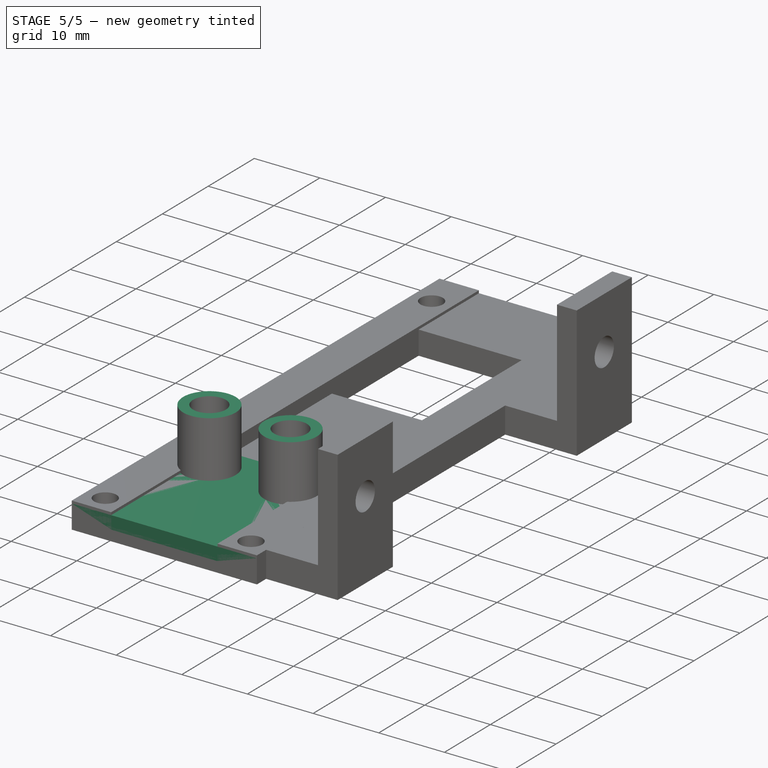
[diagram: stage 5 of 5 — iso view after this stage's code; geometry added in this stage tinted green]
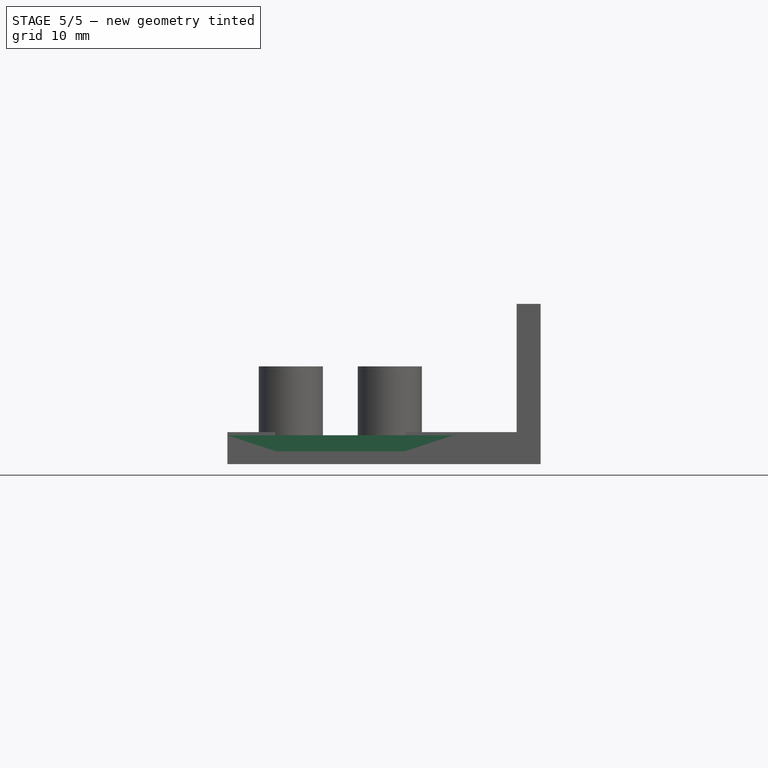
[diagram: stage 5 of 5 — front view after this stage's code; geometry added in this stage tinted green]
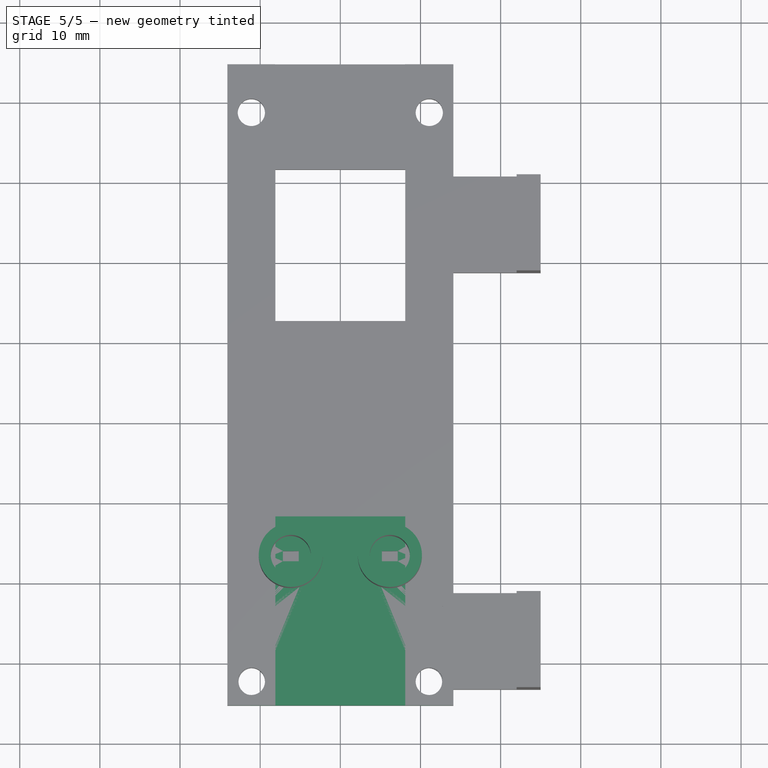
[diagram: stage 5 of 5 — top view after this stage's code; geometry added in this stage tinted green]
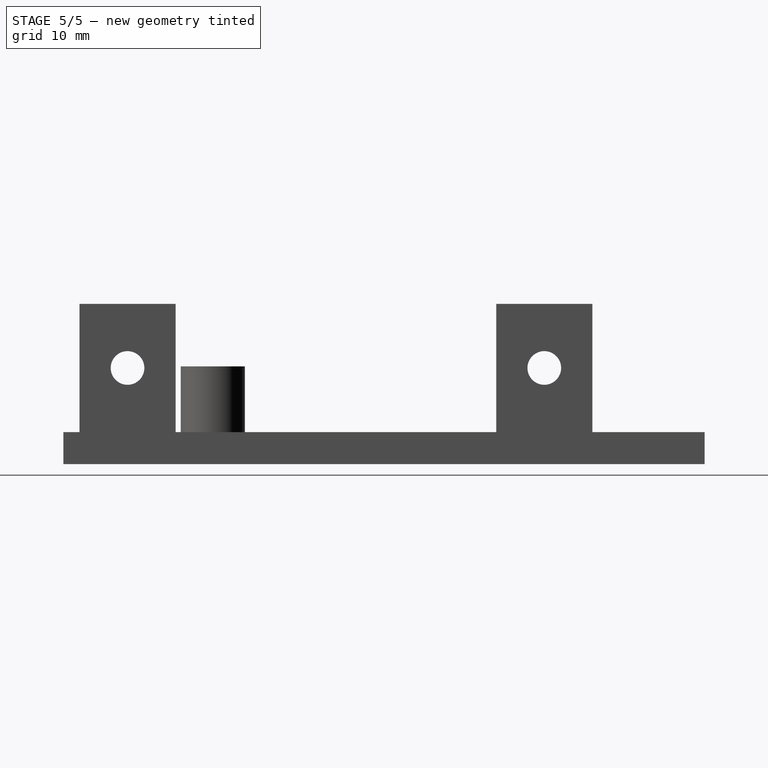
[diagram: stage 5 of 5 — right view after this stage's code; geometry added in this stage tinted green]
FEATURE [Sketcher::SketchObject] Sketch004  label="FilmStripOutline001"
  FullyConstrained = false
  MapMode = 5
  Support = -> [XY_Plane001]
  sketch-geometry (97):
    g0: LineSegment StartX=-8 StartY=30.2375 StartZ=0 EndX=8 EndY=30.2375 EndZ=0
    g1: LineSegment StartX=8 StartY=30.2375 StartZ=0 EndX=8 EndY=-30.2375 EndZ=0
    g2: LineSegment StartX=8 StartY=-30.2375 StartZ=0 EndX=-8 EndY=-30.2375 EndZ=0
    g3: LineSegment StartX=-8 StartY=-30.2375 StartZ=0 EndX=-8 EndY=30.2375 EndZ=0
    g4: LineSegment StartX=-5.13 StartY=3.745 StartZ=0 EndX=5.13 EndY=3.745 EndZ=0
    g5: LineSegment StartX=5.13 StartY=3.745 StartZ=0 EndX=5.13 EndY=-3.745 EndZ=0
    g6: LineSegment StartX=5.13 StartY=-3.745 StartZ=0 EndX=-5.13 EndY=-3.745 EndZ=0
    g7: LineSegment StartX=-5.13 StartY=-3.745 StartZ=0 EndX=-5.13 EndY=3.745 EndZ=0
    g8: LineSegment StartX=-5.13 StartY=3.8575 StartZ=0 EndX=5.13 EndY=3.8575 EndZ=0
    g9: LineSegment StartX=5.13 StartY=3.8575 StartZ=0 EndX=5.13 EndY=11.3475 EndZ=0
    g10: LineSegment StartX=5.13 StartY=11.3475 StartZ=0 EndX=-5.13 EndY=11.3475 EndZ=0
    g11: LineSegment StartX=-5.13 StartY=11.3475 StartZ=0 EndX=-5.13 EndY=3.8575 EndZ=0
    g12: LineSegment StartX=-5.13 StartY=12.0925 StartZ=0 EndX=5.13 EndY=12.0925 EndZ=0
    g13: LineSegment StartX=5.13 StartY=12.0925 StartZ=0 EndX=5.13 EndY=19.5825 EndZ=0
    g14: LineSegment StartX=5.13 StartY=19.5825 StartZ=0 EndX=-5.13 EndY=19.5825 EndZ=0
    g15: LineSegment StartX=-5.13 StartY=19.5825 StartZ=0 EndX=-5.13 EndY=12.0925 EndZ=0
    g16: LineSegment StartX=-5.13 StartY=-3.8575 StartZ=0 EndX=5.13 EndY=-3.8575 EndZ=0
    g17: LineSegment StartX=5.13 StartY=-3.8575 StartZ=0 EndX=5.13 EndY=-11.3475 EndZ=0
    g18: LineSegment StartX=5.13 StartY=-11.3475 StartZ=0 EndX=-5.13 EndY=-11.3475 EndZ=0
    g19: LineSegment StartX=-5.13 StartY=-11.3475 StartZ=0 EndX=-5.13 EndY=-3.8575 EndZ=0
    g20: LineSegment StartX=-5.13 StartY=-11.4575 StartZ=0 EndX=5.13 EndY=-11.4575 EndZ=0
    g21: LineSegment StartX=5.13 StartY=-11.4575 StartZ=0 EndX=5.13 EndY=-18.9475 EndZ=0
    g22: LineSegment StartX=5.13 StartY=-18.9475 StartZ=0 EndX=-5.13 EndY=-18.9475 EndZ=0
    g23: LineSegment StartX=-5.13 StartY=-18.9475 StartZ=0 EndX=-5.13 EndY=-11.4575 EndZ=0
    g24: LineSegment StartX=-7.1687 StartY=4.4375 StartZ=0 EndX=-5.1875 EndY=4.4375 EndZ=0
    g25: LineSegment StartX=-5.1875 StartY=4.4375 StartZ=0 EndX=-5.1875 EndY=3.1675 EndZ=0
    g26: LineSegment StartX=-5.1875 StartY=3.1675 StartZ=0 EndX=-7.1687 EndY=3.1675 EndZ=0
    g27: LineSegment StartX=-7.1687 StartY=3.1675 StartZ=0 EndX=-7.1687 EndY=4.4375 EndZ=0
    g28: LineSegment StartX=5.1875 StartY=4.4375 StartZ=0 EndX=7.1687 EndY=4.4375 EndZ=0
    g29: LineSegment StartX=7.1687 StartY=4.4375 StartZ=0 EndX=7.1687 EndY=3.1675 EndZ=0
    g30: LineSegment StartX=7.1687 StartY=3.1675 StartZ=0 EndX=5.1875 EndY=3.1675 EndZ=0
    g31: LineSegment StartX=5.1875 StartY=3.1675 StartZ=0 EndX=5.1875 EndY=4.4375 EndZ=0
    g32: GeomPoint X=6.1781 Y=3.8025 Z=0
    g33: GeomPoint X=-6.1781 Y=3.8025 Z=0
    g34: LineSegment StartX=-7.1687 StartY=-3.1675 StartZ=0 EndX=-5.1875 EndY=-3.1675 EndZ=0
    g35: LineSegment StartX=-5.1875 StartY=-3.1675 StartZ=0 EndX=-5.1875 EndY=-4.4375 EndZ=0
    g36: LineSegment StartX=-5.1875 StartY=-4.4375 StartZ=0 EndX=-7.1687 EndY=-4.4375 EndZ=0
    g37: LineSegment StartX=-7.1687 StartY=-4.4375 StartZ=0 EndX=-7.1687 EndY=-3.1675 EndZ=0
    g38: LineSegment StartX=5.1875 StartY=-3.1675 StartZ=0 EndX=7.1687 EndY=-3.1675 EndZ=0
    g39: LineSegment StartX=7.1687 StartY=-3.1675 StartZ=0 EndX=7.1687 EndY=-4.4375 EndZ=0
    g40: LineSegment StartX=7.1687 StartY=-4.4375 StartZ=0 EndX=5.1875 EndY=-4.4375 EndZ=0
    g41: LineSegment StartX=5.1875 StartY=-4.4375 StartZ=0 EndX=5.1875 EndY=-3.1675 EndZ=0
    g42: GeomPoint X=-6.1781 Y=-3.8025 Z=0
    g43: GeomPoint X=6.1781 Y=-3.8025 Z=0
    g44: LineSegment StartX=-7.1687 StartY=-10.7675 StartZ=0 EndX=-5.1875 EndY=-10.7675 EndZ=0
    g45: LineSegment StartX=-5.1875 StartY=-10.7675 StartZ=0 EndX=-5.1875 EndY=-12.0375 EndZ=0
    g46: LineSegment StartX=-5.1875 StartY=-12.0375 StartZ=0 EndX=-7.1687 EndY=-12.0375 EndZ=0
    g47: LineSegment StartX=-7.1687 StartY=-12.0375 StartZ=0 EndX=-7.1687 EndY=-10.7675 EndZ=0
    g48: LineSegment StartX=5.1875 StartY=-10.7675 StartZ=0 EndX=7.1687 EndY=-10.7675 EndZ=0
    g49: LineSegment StartX=7.1687 StartY=-10.7675 StartZ=0 EndX=7.1687 EndY=-12.0375 EndZ=0
    g50: LineSegment StartX=7.1687 StartY=-12.0375 StartZ=0 EndX=5.1875 EndY=-12.0375 EndZ=0
    g51: LineSegment StartX=5.1875 StartY=-12.0375 StartZ=0 EndX=5.1875 EndY=-10.7675 EndZ=0
    g52: LineSegment StartX=-7.1687 StartY=-18.3675 StartZ=0 EndX=-5.1875 EndY=-18.3675 EndZ=0
    g53: LineSegment StartX=-5.1875 StartY=-18.3675 StartZ=0 EndX=-5.1875 EndY=-19.6375 EndZ=0
    g54: LineSegment StartX=-5.1875 StartY=-19.6375 StartZ=0 EndX=-7.1687 EndY=-19.6375 EndZ=0
    g55: LineSegment StartX=-7.1687 StartY=-19.6375 StartZ=0 EndX=-7.1687 EndY=-18.3675 EndZ=0
    g56: LineSegment StartX=5.1875 StartY=-18.3675 StartZ=0 EndX=7.1687 EndY=-18.3675 EndZ=0
    g57: LineSegment StartX=7.1687 StartY=-18.3675 StartZ=0 EndX=7.1687 EndY=-19.6375 EndZ=0
    g58: LineSegment StartX=7.1687 StartY=-19.6375 StartZ=0 EndX=5.1875 EndY=-19.6375 EndZ=0
    g59: LineSegment StartX=5.1875 StartY=-19.6375 StartZ=0 EndX=5.1875 EndY=-18.3675 EndZ=0
    g60: GeomPoint X=6e-16 Y=-7.6025 Z=0
    g61: GeomPoint X=-1.31121 Y=-21.1583 Z=0
    g62: GeomPoint X=8e-16 Y=-15.2025 Z=0
    g63: LineSegment StartX=-7.1687 StartY=12.0375 StartZ=0 EndX=-5.1875 EndY=12.0375 EndZ=0
    g64: LineSegment StartX=-5.1875 StartY=12.0375 StartZ=0 EndX=-5.1875 EndY=10.7675 EndZ=0
    g65: LineSegment StartX=-5.1875 StartY=10.7675 StartZ=0 EndX=-7.1687 EndY=10.7675 EndZ=0
    g66: LineSegment StartX=-7.1687 StartY=10.7675 StartZ=0 EndX=-7.1687 EndY=12.0375 EndZ=0
    g67: LineSegment StartX=-7.1687 StartY=19.6375 StartZ=0 EndX=-5.1875 EndY=19.6375 EndZ=0
    g68: LineSegment StartX=-5.1875 StartY=19.6375 StartZ=0 EndX=-5.1875 EndY=18.3675 EndZ=0
    g69: LineSegment StartX=-5.1875 StartY=18.3675 StartZ=0 EndX=-7.1687 EndY=18.3675 EndZ=0
    g70: LineSegment StartX=-7.1687 StartY=18.3675 StartZ=0 EndX=-7.1687 EndY=19.6375 EndZ=0
    g71: LineSegment StartX=5.1875 StartY=19.6375 StartZ=0 EndX=7.1687 EndY=19.6375 EndZ=0
    g72: LineSegment StartX=7.1687 StartY=19.6375 StartZ=0 EndX=7.1687 EndY=18.3675 EndZ=0
    g73: LineSegment StartX=7.1687 StartY=18.3675 StartZ=0 EndX=5.1875 EndY=18.3675 EndZ=0
    g74: LineSegment StartX=5.1875 StartY=18.3675 StartZ=0 EndX=5.1875 EndY=19.6375 EndZ=0
    g75: LineSegment StartX=5.1875 StartY=12.0375 StartZ=0 EndX=7.1687 EndY=12.0375 EndZ=0
    g76: LineSegment StartX=7.1687 StartY=12.0375 StartZ=0 EndX=7.1687 EndY=10.7675 EndZ=0
    g77: LineSegment StartX=7.1687 StartY=10.7675 StartZ=0 EndX=5.1875 EndY=10.7675 EndZ=0
    g78: LineSegment StartX=5.1875 StartY=10.7675 StartZ=0 EndX=5.1875 EndY=12.0375 EndZ=0
    g79: LineSegment StartX=5.1875 StartY=27.2375 StartZ=0 EndX=7.1687 EndY=27.2375 EndZ=0
    g80: LineSegment StartX=7.1687 StartY=27.2375 StartZ=0 EndX=7.1687 EndY=25.9675 EndZ=0
    g81: LineSegment StartX=7.1687 StartY=25.9675 StartZ=0 EndX=5.1875 EndY=25.9675 EndZ=0
    g82: LineSegment StartX=5.1875 StartY=25.9675 StartZ=0 EndX=5.1875 EndY=27.2375 EndZ=0
    g83: LineSegment StartX=-7.1687 StartY=27.2375 StartZ=0 EndX=-5.1875 EndY=27.2375 EndZ=0
    g84: LineSegment StartX=-5.1875 StartY=27.2375 StartZ=0 EndX=-5.1875 EndY=25.9675 EndZ=0
    g85: LineSegment StartX=-5.1875 StartY=25.9675 StartZ=0 EndX=-7.1687 EndY=25.9675 EndZ=0
    g86: LineSegment StartX=-7.1687 StartY=25.9675 StartZ=0 EndX=-7.1687 EndY=27.2375 EndZ=0
    g87: LineSegment StartX=5.1875 StartY=-25.9675 StartZ=0 EndX=7.1687 EndY=-25.9675 EndZ=0
    g88: LineSegment StartX=7.1687 StartY=-25.9675 StartZ=0 EndX=7.1687 EndY=-27.2375 EndZ=0
    g89: LineSegment StartX=7.1687 StartY=-27.2375 StartZ=0 EndX=5.1875 EndY=-27.2375 EndZ=0
    g90: LineSegment StartX=5.1875 StartY=-27.2375 StartZ=0 EndX=5.1875 EndY=-25.9675 EndZ=0
    g91: LineSegment StartX=-7.1687 StartY=-25.9675 StartZ=0 EndX=-5.1875 EndY=-25.9675 EndZ=0
    g92: LineSegment StartX=-5.1875 StartY=-25.9675 StartZ=0 EndX=-5.1875 EndY=-27.2375 EndZ=0
    g93: LineSegment StartX=-5.1875 StartY=-27.2375 StartZ=0 EndX=-7.1687 EndY=-27.2375 EndZ=0
    g94: LineSegment StartX=-7.1687 StartY=-27.2375 StartZ=0 EndX=-7.1687 EndY=-25.9675 EndZ=0
    g95: GeomPoint X=3e-16 Y=7.6025 Z=0
    g96: GeomPoint X=0 Y=15.8375 Z=0
  constraints (265):
    c: Coincident(g1,g2)
    c: Coincident(g2,g3)
    c: Coincident(g3,g0)
    c: Horizontal(g0)
    c: Horizontal(g2)
    c: Vertical(g1)
    c: Vertical(g3)
    c: DistanceX(g0,g0) = 16
    c: Coincident(g4,g5)
    c: Coincident(g5,g6)
    c: Coincident(g6,g7)
    c: Coincident(g7,g4)
    c: Horizontal(g4)
    c: Horizontal(g6)
    c: Vertical(g5)
    c: Vertical(g7)
    c: DistanceY(g5,g5) = 7.49
    c: DistanceX(g4,g4) = 10.26
    c: Symmetric(g4,g6,g-1)
    c: Symmetric(g1,g0,g-1)
    c: Coincident(g8,g9)
    c: Coincident(g9,g10)
    c: Coincident(g10,g11)
    c: Coincident(g11,g8)
    c: Horizontal(g8)
    c: Horizontal(g10)
    c: Vertical(g9)
    c: Vertical(g11)
    c: Coincident(g12,g13)
    c: Coincident(g13,g14)
    c: Coincident(g14,g15)
    c: Coincident(g15,g12)
    c: Horizontal(g12)
    c: Horizontal(g14)
    c: Vertical(g13)
    c: Vertical(g15)
    c: Coincident(g16,g17)
    c: Coincident(g17,g18)
    c: Coincident(g18,g19)
    c: Coincident(g19,g16)
    c: Horizontal(g16)
    c: Horizontal(g18)
    c: Vertical(g17)
    c: Vertical(g19)
    c: Coincident(g20,g21)
    c: Coincident(g21,g22)
    c: Coincident(g22,g23)
    c: Coincident(g23,g20)
    c: Horizontal(g20)
    c: Horizontal(g22)
    c: Vertical(g21)
    c: Vertical(g23)
    c: Vertical(g13,g9)
    c: Vertical(g9,g16)
    c: Vertical(g16,g4)
    c: Vertical(g4,g20)
    c: Vertical(g20,g16)
    c: Vertical(g16,g4)
    c: Vertical(g4,g10)
    c: Vertical(g10,g14)
    c: Coincident(g24,g25)
    c: Coincident(g25,g26)
    c: Coincident(g26,g27)
    c: Coincident(g27,g24)
    c: Horizontal(g24)
    c: Horizontal(g26)
    c: Vertical(g25)
    c: Vertical(g27)
    c: Coincident(g28,g29)
    c: Coincident(g29,g30)
    c: Coincident(g30,g31)
    c: Coincident(g31,g28)
    c: Horizontal(g28)
    c: Horizontal(g30)
    c: Vertical(g29)
    c: Vertical(g31)
    c: DistanceY(g25,g25) = 1.27
    c: DistanceX(g24,g24) = 1.9812
    c: Equal(g24,g28)
    c: Equal(g25,g31)
    c: Horizontal(g24,g28)
    c: Symmetric(g24,g26,g33)
    c: Symmetric(g28,g30,g32)
    c: Coincident(g34,g35)
    c: Coincident(g35,g36)
    c: Coincident(g36,g37)
    c: Coincident(g37,g34)
    c: Horizontal(g34)
    c: Horizontal(g36)
    c: Vertical(g35)
    c: Vertical(g37)
    c: Coincident(g38,g39)
    c: Coincident(g39,g40)
    c: Coincident(g40,g41)
    c: Coincident(g41,g38)
    c: Horizontal(g38)
    c: Horizontal(g40)
    c: Vertical(g39)
    c: Vertical(g41)
    c: Equal(g38,g34)
    c: Equal(g34,g26)
    c: Vertical(g25,g34)
    c: Vertical(g38,g30)
    c: Equal(g25,g37)
    c: Equal(g37,g41)
    c: Symmetric(g38,g40,g43)
    c: Symmetric(g34,g36,g42)
    c: DistanceY(g42,g33) = 7.605
    c: Horizontal(g42,g43)
    c: Symmetric(g32,g42,g-1)
    c: DistanceX(g24,g4) = 0.0575
    c: Equal(g11,g15)
    c: Coincident(g44,g45)
    c: Coincident(g45,g46)
    c: Coincident(g46,g47)
    c: Coincident(g47,g44)
    c: Horizontal(g44)
    c: Horizontal(g46)
    c: Vertical(g45)
    c: Vertical(g47)
    c: Coincident(g48,g49)
    c: Coincident(g49,g50)
    c: Coincident(g50,g51)
    c: Coincident(g51,g48)
    c: Horizontal(g48)
    c: Horizontal(g50)
    c: Vertical(g49)
    c: Vertical(g51)
    c: Coincident(g52,g53)
    c: Coincident(g53,g54)
    c: Coincident(g54,g55)
    c: Coincident(g55,g52)
    c: Horizontal(g52)
    c: Horizontal(g54)
    c: Vertical(g53)
    c: Vertical(g55)
    c: Coincident(g56,g57)
    c: Coincident(g57,g58)
    c: Coincident(g58,g59)
    c: Coincident(g59,g56)
    c: Horizontal(g56)
    c: Horizontal(g58)
    c: Vertical(g57)
    c: Vertical(g59)
    c: Vertical(g36,g44)
    c: Vertical(g46,g52)
    c: Vertical(g39,g48)
    c: Vertical(g49,g56)
    c: Equal(g44,g54)
    c: Equal(g58,g50)
    c: Equal(g47,g37)
    c: Equal(g37,g51)
    c: Equal(g51,g59)
    c: Equal(g59,g53)
    c: DistanceY(g48,g39) = 6.33
    c: DistanceY(g56,g49) = 6.33
    c: Horizontal(g44,g48)
    c: Horizontal(g56,g52)
    c: Symmetric(g40,g44,g60)
    c: Symmetric(g16,g17,g60)
    c: Equal(g19,g7)
    c: Symmetric(g45,g56,g62)
    c: Symmetric(g20,g21,g62)
    c: Equal(g23,g19)
    c: Coincident(g63,g64)
    c: Coincident(g64,g65)
    c: Coincident(g65,g66)
    c: Coincident(g66,g63)
    c: Horizontal(g63)
    c: Horizontal(g65)
    c: Vertical(g64)
    c: Vertical(g66)
    c: Coincident(g67,g68)
    c: Coincident(g68,g69)
    c: Coincident(g69,g70)
    c: Coincident(g70,g67)
    c: Horizontal(g67)
    c: Horizontal(g69)
    c: Vertical(g68)
    c: Vertical(g70)
    c: Coincident(g71,g72)
    c: Coincident(g72,g73)
    c: Coincident(g73,g74)
    c: Coincident(g74,g71)
    c: Horizontal(g71)
    c: Horizontal(g73)
    c: Vertical(g72)
    c: Vertical(g74)
    c: Coincident(g75,g76)
    c: Coincident(g76,g77)
    c: Coincident(g77,g78)
    c: Coincident(g78,g75)
    c: Horizontal(g75)
    c: Horizontal(g77)
    c: Vertical(g76)
    c: Vertical(g78)
    c: Coincident(g79,g80)
    c: Coincident(g80,g81)
    c: Coincident(g81,g82)
    c: Coincident(g82,g79)
    c: Horizontal(g79)
    c: Horizontal(g81)
    c: Vertical(g80)
    c: Vertical(g82)
    c: Coincident(g83,g84)
    c: Coincident(g84,g85)
    c: Coincident(g85,g86)
    c: Coincident(g86,g83)
    c: Horizontal(g83)
    c: Horizontal(g85)
    c: Vertical(g84)
    c: Vertical(g86)
    c: Coincident(g87,g88)
    c: Coincident(g88,g89)
    c: Coincident(g89,g90)
    c: Coincident(g90,g87)
    c: Horizontal(g87)
    c: Horizontal(g89)
    c: Vertical(g88)
    c: Vertical(g90)
    c: Coincident(g91,g92)
    c: Coincident(g92,g93)
    c: Coincident(g93,g94)
    c: Coincident(g94,g91)
    c: Horizontal(g91)
    c: Horizontal(g93)
    c: Vertical(g92)
    c: Vertical(g94)
    c: Equal(g94,g66)
    c: Equal(g66,g70)
    c: Equal(g70,g86)
    c: Equal(g86,g82)
    c: Equal(g82,g74)
    c: Equal(g74,g78)
    c: Equal(g78,g90)
    c: Equal(g90,g27)
    c: Equal(g83,g79)
    c: Equal(g79,g71)
    c: Equal(g71,g75)
    c: Equal(g75,g63)
    c: Equal(g63,g67)
    c: Equal(g67,g91)
    c: Equal(g91,g87)
    c: Equal(g87,g52)
    c: Horizontal(g91,g87)
    c: Horizontal(g75,g63)
    c: Horizontal(g67,g71)
    c: Horizontal(g81,g84)
    c: Vertical(g84,g67)
    c: Vertical(g67,g63)
    c: Vertical(g81,g71)
    c: Vertical(g71,g75)
    c: Vertical(g87,g58)
    c: Vertical(g53,g91)
    c: DistanceY(g87,g57) = 6.33
    c: DistanceY(g28,g76) = 6.33
    c: DistanceY(g75,g72) = 6.33
    c: DistanceY(g71,g80) = 6.33
    c: Symmetric(g64,g28,g95)
    c: Symmetric(g67,g75,g96)
    c: Symmetric(g9,g8,g95)
    c: Symmetric(g13,g12,g96)
    c: Equal(g11,g7)
    c: DistanceY(g1,g88) = 3
    c: Coincident(g1,g0)
FEATURE [Sketcher::SketchObject] Sketch005
  ExternalGeometry = -> [Sketch004]
  FullyConstrained = true
  MapMode = 5
  Support = -> [XY_Plane001]
  sketch-geometry (5):
    g0: LineSegment StartX=-8 StartY=-21.6375 StartZ=0 EndX=8 EndY=-21.6375 EndZ=0
    g1: LineSegment StartX=8 StartY=-21.6375 StartZ=0 EndX=8 EndY=-45.2375 EndZ=0
    g2: LineSegment StartX=8 StartY=-45.2375 StartZ=0 EndX=-8 EndY=-45.2375 EndZ=0
    g3: LineSegment StartX=-8 StartY=-45.2375 StartZ=0 EndX=-8 EndY=-21.6375 EndZ=0
    g4: GeomPoint X=0 Y=-33.4375 Z=0
  constraints (13):
    c: Coincident(g0,g1)
    c: Coincident(g1,g2)
    c: Coincident(g2,g3)
    c: Coincident(g3,g0)
    c: Horizontal(g0)
    c: Horizontal(g2)
    c: Vertical(g1)
    c: Vertical(g3)
    c: DistanceX(g2,g2) = 16
    c: DistanceY(g1,g1) = 23.6
    c: DistanceY(g1,g-3) = 18
    c: PointOnObject(g4,g-2)
    c: Symmetric(g0,g2,g4)
FEATURE [PartDesign::Pad] Pad001  label="Socket"
  Direction = (0,0,1)
  Length = 1.6
  Length2 = 10
  Profile = -> Sketch005
  ReferenceAxis = -> Sketch005 [N_Axis]
  Type = 0
FEATURE [Sketcher::SketchObject] Sketch006
  ExternalGeometry = -> [Pad001]
  FullyConstrained = true
  MapMode = 5
  Placement = pos=(0,0,1.6) rot=(0,0,1;0rad)
  Support = -> [Pad001]
  sketch-geometry (4):
    g0: LineSegment StartX=-14.1 StartY=-21.6375 StartZ=0 EndX=14.1 EndY=-21.6375 EndZ=0
    g1: LineSegment StartX=14.1 StartY=-21.6375 StartZ=0 EndX=14.1 EndY=-45.2375 EndZ=0
    g2: LineSegment StartX=14.1 StartY=-45.2375 StartZ=0 EndX=-14.1 EndY=-45.2375 EndZ=0
    g3: LineSegment StartX=-14.1 StartY=-45.2375 StartZ=0 EndX=-14.1 EndY=-21.6375 EndZ=0
  constraints (12):
    c: Coincident(g0,g1)
    c: Coincident(g1,g2)
    c: Coincident(g2,g3)
    c: Coincident(g3,g0)
    c: Horizontal(g0)
    c: Horizontal(g2)
    c: Vertical(g1)
    c: Vertical(g3)
    c: PointOnObject(g-3,g0)
    c: PointOnObject(g-4,g2)
    c: DistanceX(g2,g-4) = 6.1
    c: DistanceX(g-4,g1) = 6.1
FEATURE [PartDesign::Pad] Pad002
  BaseFeature = -> Pad001
  Direction = (0,0,1)
  Length = 2
  Length2 = 10
  Profile = -> Sketch006
  ReferenceAxis = -> Sketch006 [N_Axis]
  Type = 0
FEATURE [Sketcher::SketchObject] Sketch007
  ExternalGeometry = -> [Sketch004]
  FullyConstrained = true
  MapMode = 5
  Placement = pos=(0,0,3.6) rot=(0,0,1;0rad)
  Support = -> [Pad002]
  sketch-geometry (8):
    g0: LineSegment StartX=-7.1687 StartY=-25.9675 StartZ=0 EndX=-5.1875 EndY=-25.9675 EndZ=0
    g1: LineSegment StartX=-5.1875 StartY=-25.9675 StartZ=0 EndX=-5.1875 EndY=-27.2375 EndZ=0
    g2: LineSegment StartX=-5.1875 StartY=-27.2375 StartZ=0 EndX=-7.1687 EndY=-27.2375 EndZ=0
    g3: LineSegment StartX=-7.1687 StartY=-27.2375 StartZ=0 EndX=-7.1687 EndY=-25.9675 EndZ=0
    g4: LineSegment StartX=5.1875 StartY=-25.9675 StartZ=0 EndX=7.1687 EndY=-25.9675 EndZ=0
    g5: LineSegment StartX=7.1687 StartY=-25.9675 StartZ=0 EndX=7.1687 EndY=-27.2375 EndZ=0
    g6: LineSegment StartX=7.1687 StartY=-27.2375 StartZ=0 EndX=5.1875 EndY=-27.2375 EndZ=0
    g7: LineSegment StartX=5.1875 StartY=-27.2375 StartZ=0 EndX=5.1875 EndY=-25.9675 EndZ=0
  constraints (20):
    c: Coincident(g0,g1)
    c: Coincident(g1,g2)
    c: Coincident(g2,g3)
    c: Coincident(g3,g0)
    c: Horizontal(g0)
    c: Horizontal(g2)
    c: Vertical(g1)
    c: Vertical(g3)
    c: Coincident(g0,g-3)
    c: Coincident(g1,g-5)
    c: Coincident(g4,g5)
    c: Coincident(g5,g6)
    c: Coincident(g6,g7)
    c: Coincident(g7,g4)
    c: Horizontal(g4)
    c: Horizontal(g6)
    c: Vertical(g5)
    c: Vertical(g7)
    c: Coincident(g4,g-4)
    c: Coincident(g5,g-6)
FEATURE [PartDesign::Pocket] Pocket002
  BaseFeature = -> Pad002
  Direction = (0,0,-1)
  Length = 5
  Length2 = 5
  Profile = -> Sketch007
  ReferenceAxis = -> Sketch007 [N_Axis]
  Type = 1
FEATURE [Sketcher::SketchObject] Sketch008
  ExternalGeometry = -> [Pocket002]
  FullyConstrained = true
  MapMode = 5
  Placement = pos=(0,0,3.6) rot=(0,0,1;0rad)
  Support = -> [Pocket002]
  sketch-geometry (4):
    g0: Circle CenterX=-6.1781 CenterY=-26.6025 CenterZ=0 NormalX=0 NormalY=0 NormalZ=1 AngleXU=0 Radius=2.5
    g1: Circle CenterX=6.1781 CenterY=-26.6025 CenterZ=0 NormalX=0 NormalY=0 NormalZ=1 AngleXU=0 Radius=2.5
    g2: Circle CenterX=-6.1781 CenterY=-26.6025 CenterZ=0 NormalX=0 NormalY=0 NormalZ=1 AngleXU=0 Radius=4
    g3: Circle CenterX=6.1781 CenterY=-26.6025 CenterZ=0 NormalX=0 NormalY=0 NormalZ=1 AngleXU=0 Radius=4
  constraints (8):
    c: Symmetric(g-6,g-5,g1)
    c: Symmetric(g-3,g-4,g0)
    c: Equal(g0,g1)
    c: Radius(g1) = 2.5
    c: Coincident(g2,g0)
    c: Coincident(g3,g1)
    c: Equal(g2,g3)
    c: Radius(g2) = 4
FEATURE [PartDesign::Pad] Pad003
  BaseFeature = -> Pocket002
  Direction = (0,0,1)
  Length = 8.6
  Length2 = 10
  Profile = -> Sketch008
  ReferenceAxis = -> Sketch008 [N_Axis]
  Type = 0
FEATURE [Sketcher::SketchObject] Sketch009
  ExternalGeometry = -> [Pad003]
  FullyConstrained = true
  MapMode = 5
  Placement = pos=(0,0,3.6) rot=(0,0,1;0rad)
  Support = -> [Pad003]
  sketch-geometry (4):
    g0: Circle CenterX=-11.1 CenterY=-42.2375 CenterZ=0 NormalX=0 NormalY=0 NormalZ=1 AngleXU=0 Radius=1.7
    g1: Circle CenterX=11.1 CenterY=-42.2375 CenterZ=0 NormalX=0 NormalY=0 NormalZ=1 AngleXU=0 Radius=1.7
    g2: Circle CenterX=-11.1 CenterY=-33.2375 CenterZ=0 NormalX=0 NormalY=0 NormalZ=1 AngleXU=0 Radius=1.7
    g3: Circle CenterX=11.1 CenterY=-33.2375 CenterZ=0 NormalX=0 NormalY=0 NormalZ=1 AngleXU=0 Radius=1.7
  constraints (12):
    c: Equal(g0,g2)
    c: Equal(g2,g3)
    c: Equal(g3,g1)
    c: Radius(g3) = 1.7
    c: Horizontal(g2,g3)
    c: Horizontal(g1,g0)
    c: Vertical(g2,g0)
    c: Vertical(g3,g1)
    c: DistanceX(g1,g-3) = 3
    c: DistanceX(g-3,g0) = 3
    c: DistanceY(g-3,g1) = 3
    c: DistanceY(g1,g3) = 9
FEATURE [PartDesign::Pocket] Pocket003
  BaseFeature = -> Pad003
  Direction = (0,0,-1)
  Length = 5
  Length2 = 5
  Profile = -> Sketch009
  ReferenceAxis = -> Sketch009 [N_Axis]
  Type = 2
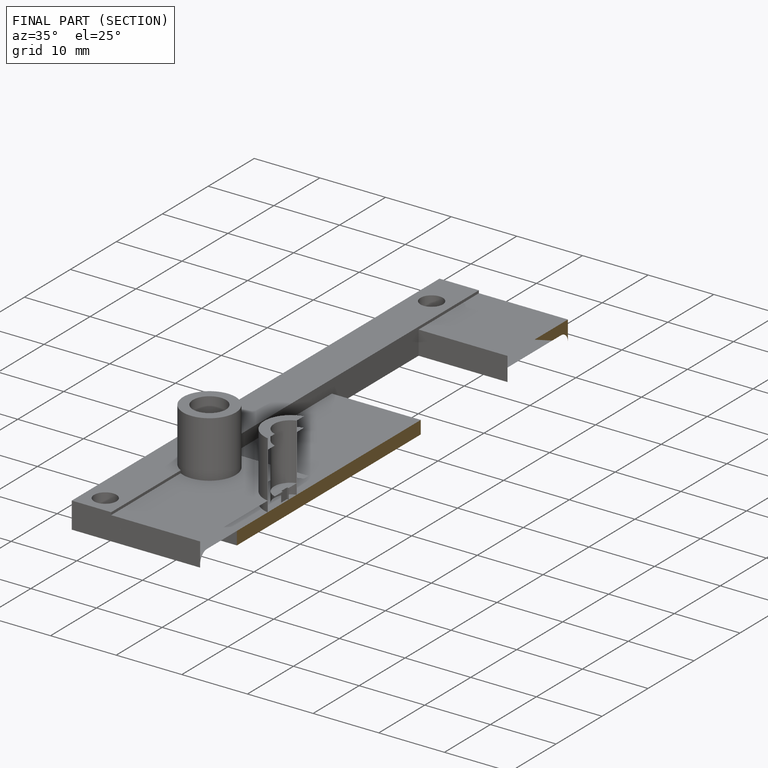
[diagram: finished part — half-section view (interior)]
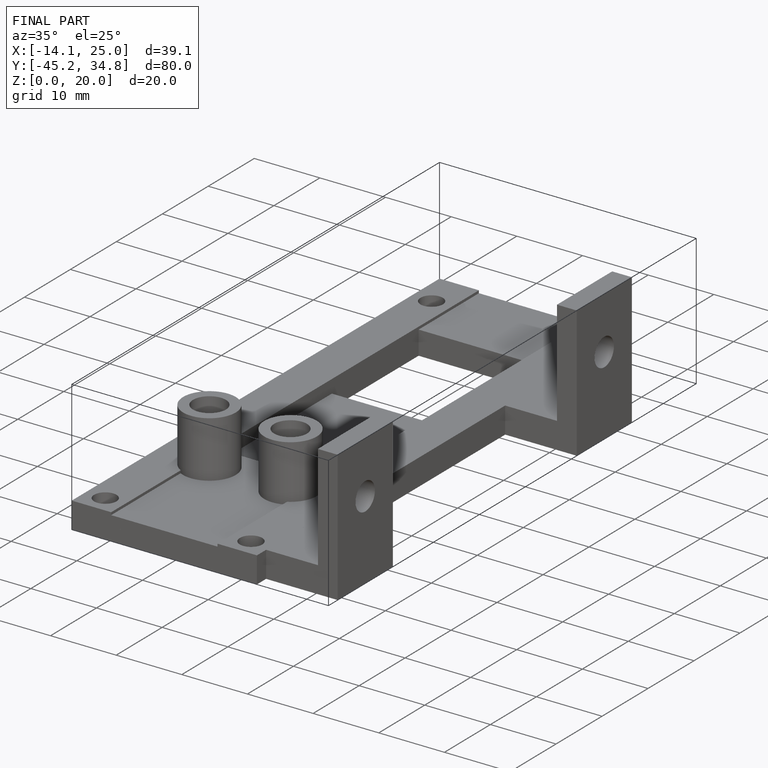
[diagram: finished part — iso view with bounding-box wireframe]
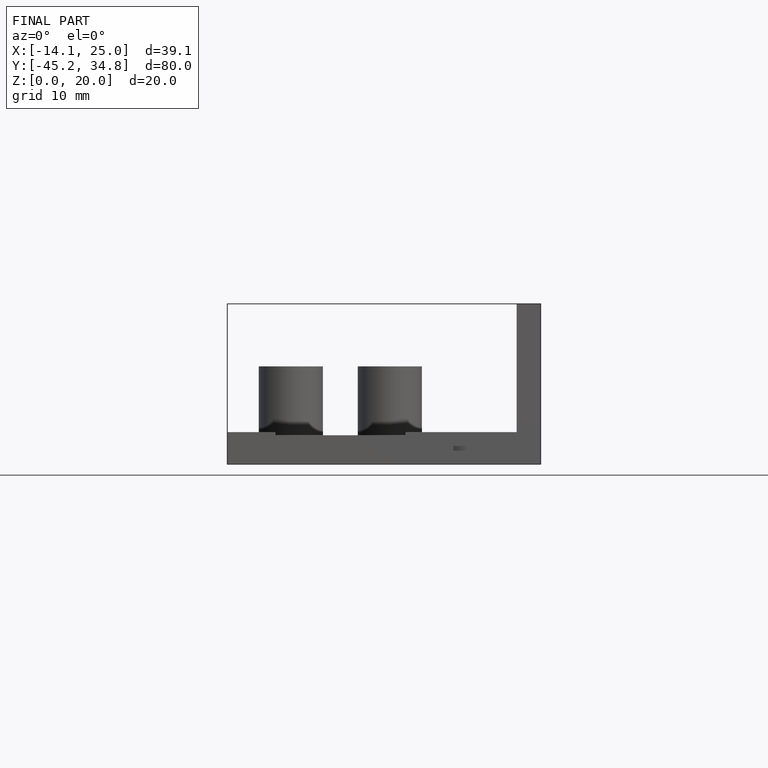
[diagram: finished part — front view with bounding-box wireframe]
